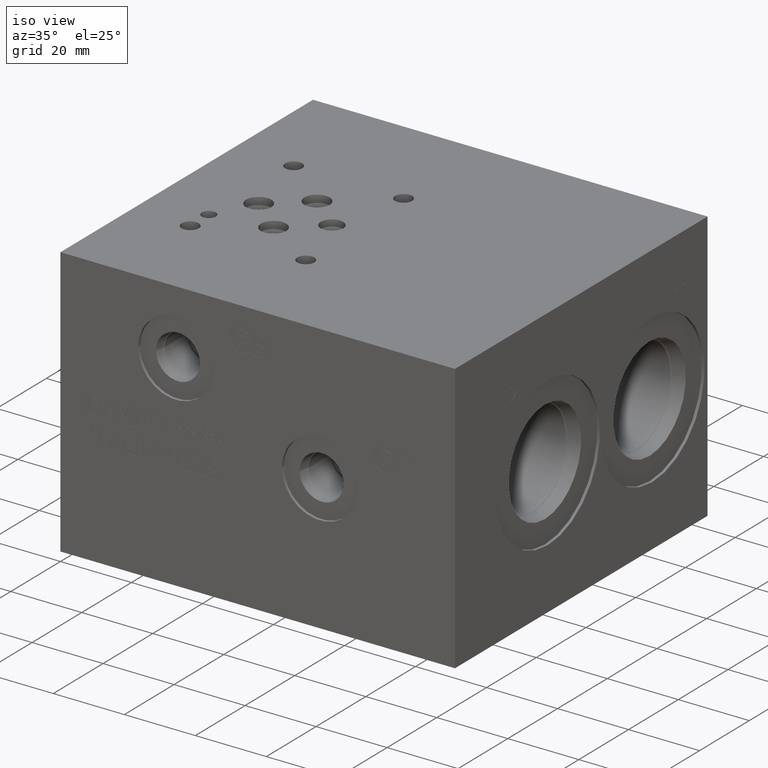
[diagram: clean part render]
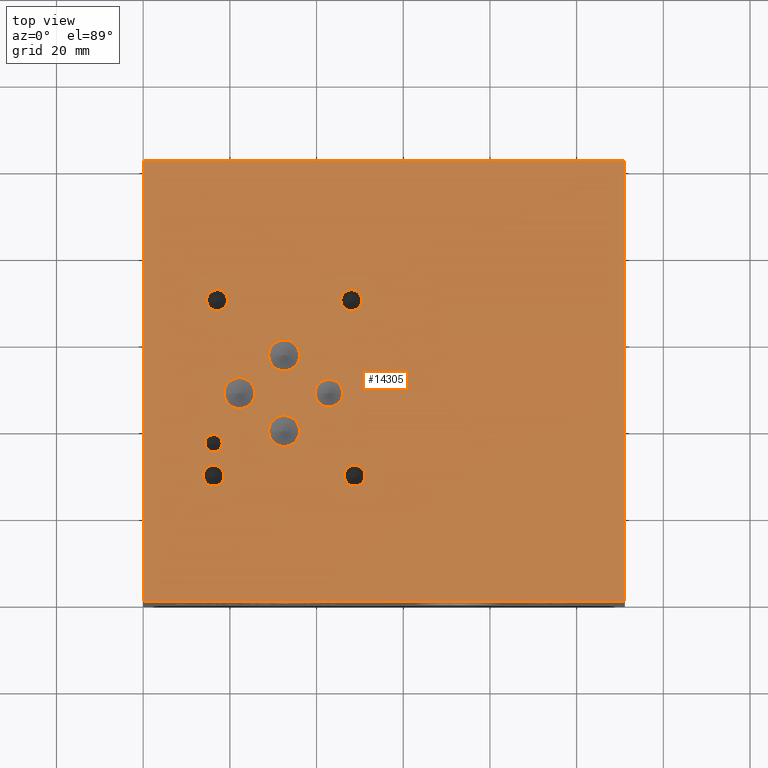
[diagram: tour spotlight — one face highlighted and labeled with its STEP entity id]
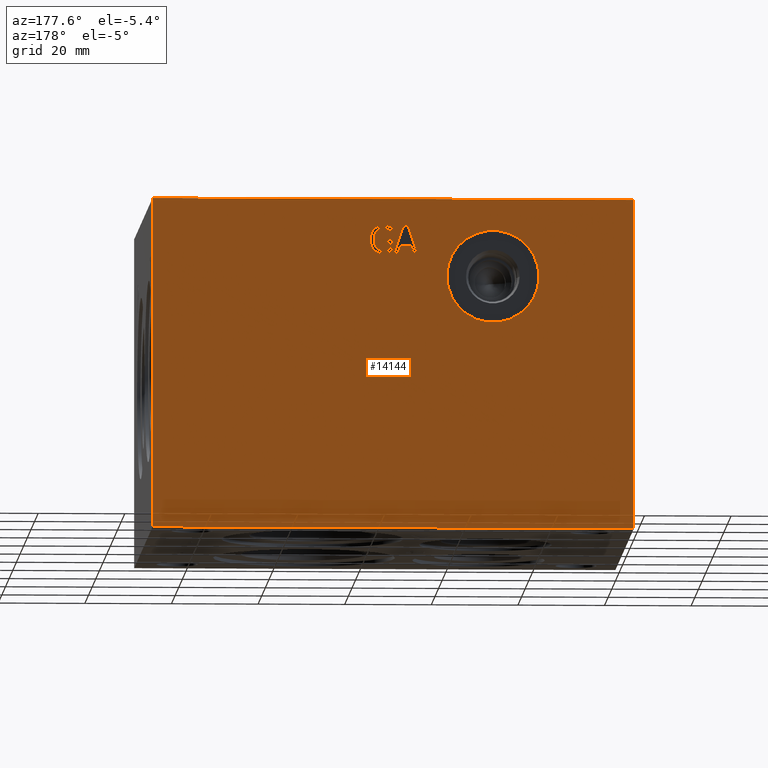
[diagram: tour spotlight — one face highlighted and labeled with its STEP entity id]
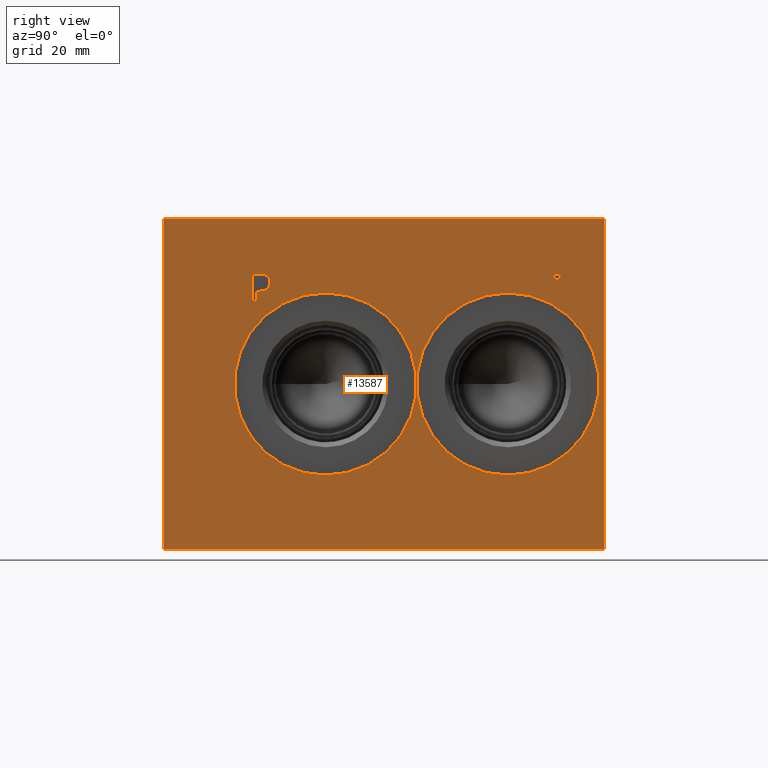
[diagram: tour spotlight — one face highlighted and labeled with its STEP entity id]
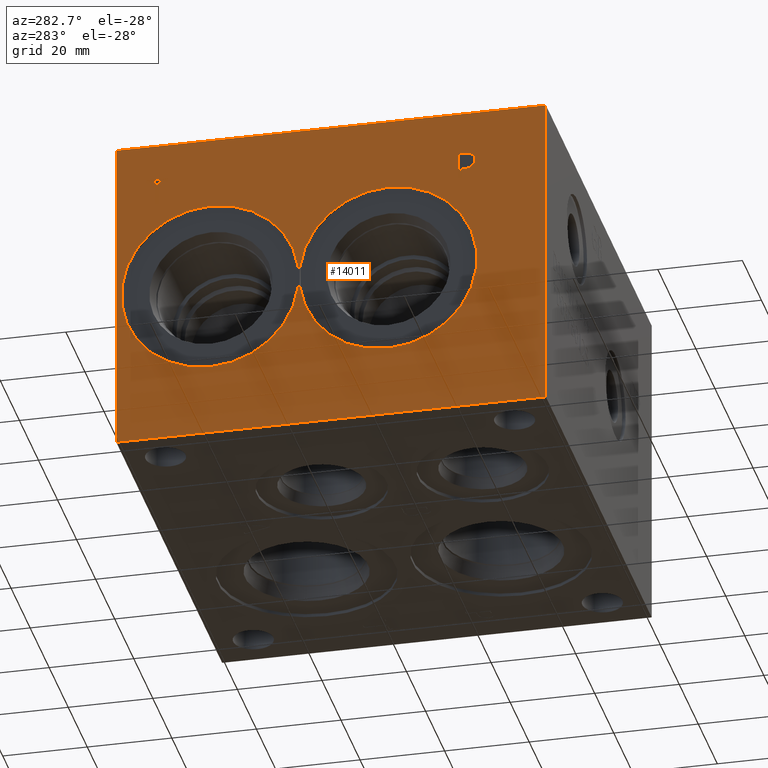
[diagram: tour spotlight — one face highlighted and labeled with its STEP entity id]
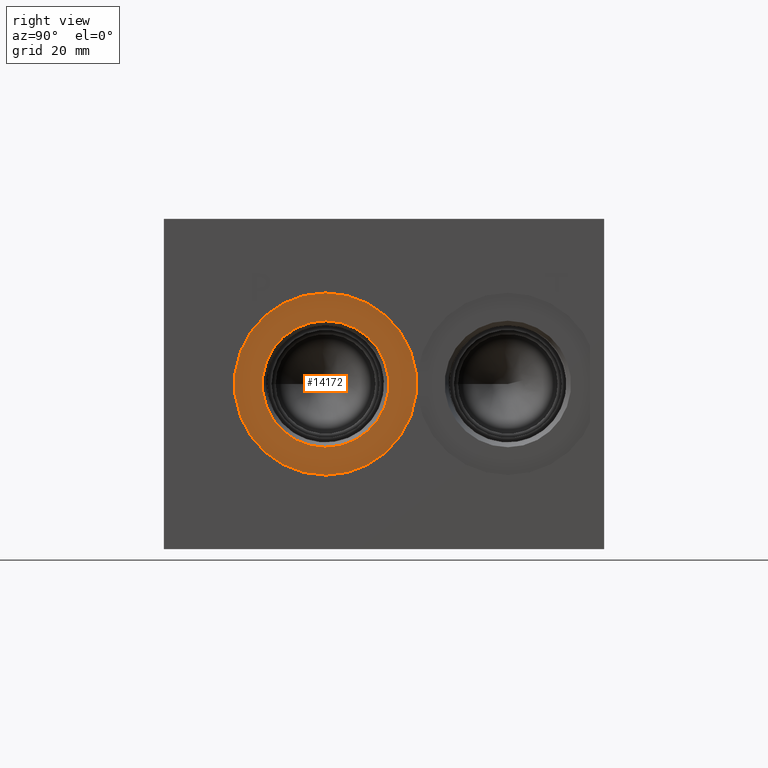
[diagram: tour spotlight — one face highlighted and labeled with its STEP entity id]
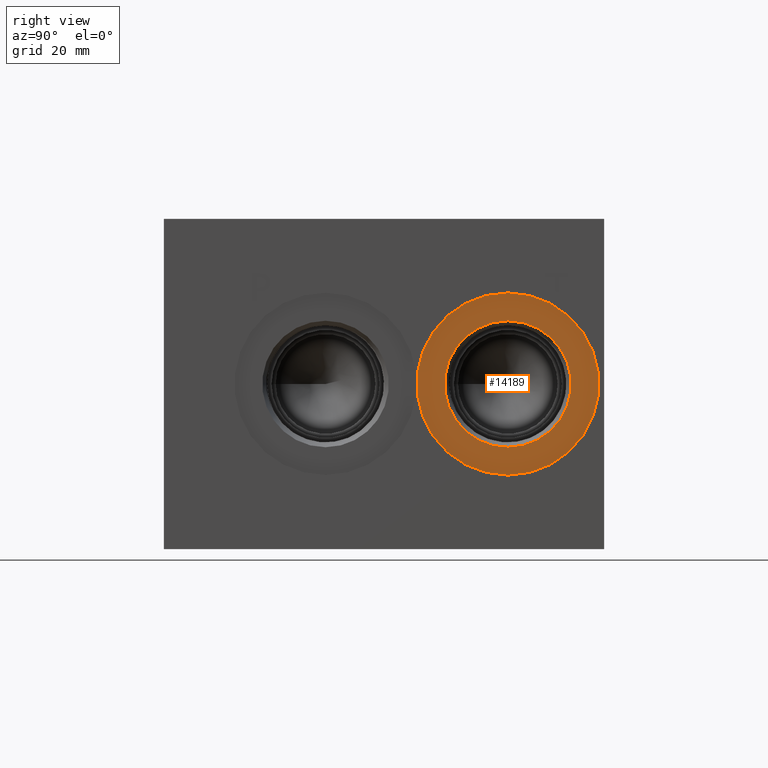
[diagram: tour spotlight — one face highlighted and labeled with its STEP entity id]
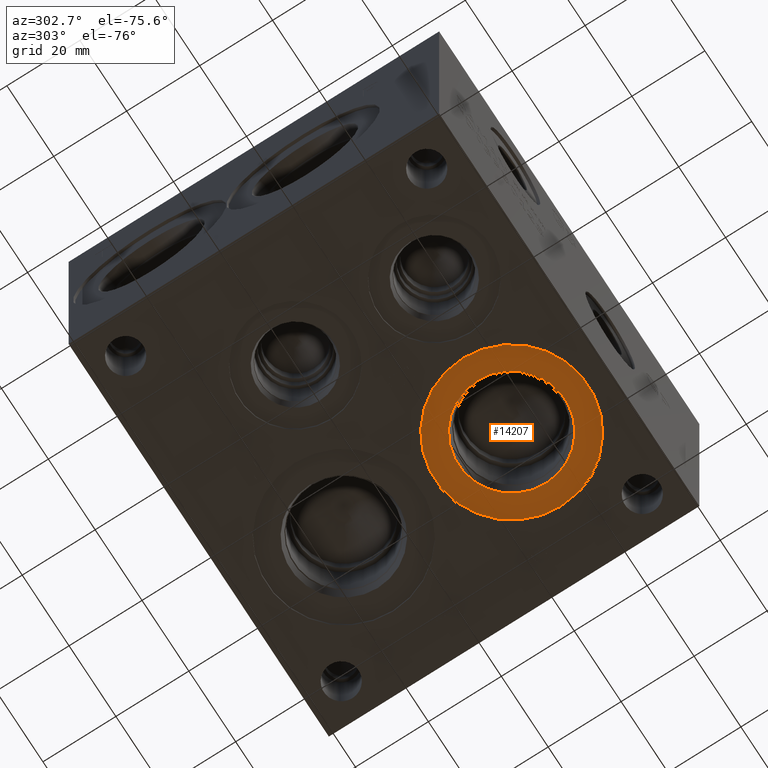
[diagram: tour spotlight — one face highlighted and labeled with its STEP entity id]
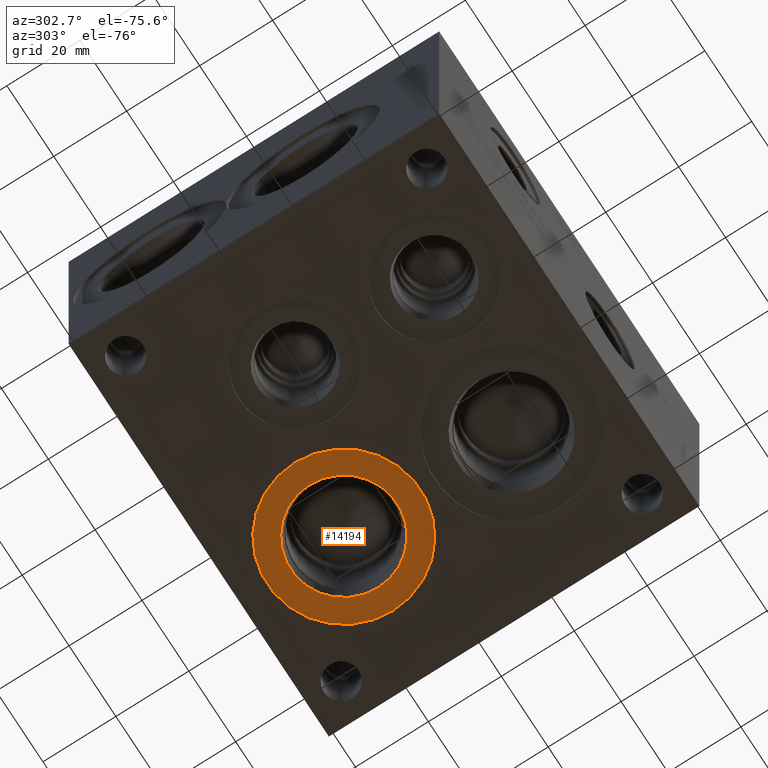
[diagram: tour spotlight — one face highlighted and labeled with its STEP entity id]
A machine part: a face-by-face anatomy tour. The part has 737 B-rep faces; the first image is the clean iso view, then the 8 largest visible faces are spotlighted one at a time (largest first), each with its STEP entity span.

Face 1 — top view, entity #14305. In plain terms, the highlighted planar face has unit normal (0, 0, 1).
Definition (entity closure, byte-faithful):
#172=CIRCLE('',#14719,3.175);
#173=CIRCLE('',#14720,3.175);
#176=CIRCLE('',#14725,3.5687);
#177=CIRCLE('',#14726,3.5687);
#180=CIRCLE('',#14731,3.5687);
#181=CIRCLE('',#14732,3.5687);
#184=CIRCLE('',#14737,3.5687);
#185=CIRCLE('',#14738,3.5687);
#188=CIRCLE('',#14743,1.9812);
#189=CIRCLE('',#14744,1.9812);
#195=CIRCLE('',#14753,2.413);
#196=CIRCLE('',#14754,2.413);
#202=CIRCLE('',#14764,2.413);
#203=CIRCLE('',#14765,2.413);
#209=CIRCLE('',#14775,2.413);
#210=CIRCLE('',#14776,2.413);
#216=CIRCLE('',#14786,2.413);
#217=CIRCLE('',#14787,2.413);
#514=FACE_BOUND('',#2493,.T.);
#515=FACE_BOUND('',#2494,.T.);
#516=FACE_BOUND('',#2495,.T.);
#517=FACE_BOUND('',#2496,.T.);
#518=FACE_BOUND('',#2497,.T.);
#519=FACE_BOUND('',#2498,.T.);
#520=FACE_BOUND('',#2499,.T.);
#521=FACE_BOUND('',#2500,.T.);
#522=FACE_BOUND('',#2501,.T.);
#921=PLANE('',#15122);
#1658=FACE_OUTER_BOUND('',#2492,.T.);
#2492=EDGE_LOOP('',(#12773,#12774,#12775,#12776));
#2493=EDGE_LOOP('',(#12777,#12778));
#2494=EDGE_LOOP('',(#12779,#12780));
#2495=EDGE_LOOP('',(#12781,#12782));
#2496=EDGE_LOOP('',(#12783,#12784));
#2497=EDGE_LOOP('',(#12785,#12786));
#2498=EDGE_LOOP('',(#12787,#12788));
#2499=EDGE_LOOP('',(#12789,#12790));
#2500=EDGE_LOOP('',(#12791,#12792));
#2501=EDGE_LOOP('',(#12793,#12794));
#2537=LINE('',#18226,#3822);
#2875=LINE('',#20638,#4160);
#3444=LINE('',#22677,#4729);
#3661=LINE('',#24026,#4946);
#3822=VECTOR('',#15180,10.);
#4160=VECTOR('',#15706,10.);
#4729=VECTOR('',#16705,10.);
#4946=VECTOR('',#17068,10.);
#5529=VERTEX_POINT('',#18223);
#5530=VERTEX_POINT('',#18225);
#5894=VERTEX_POINT('',#20637);
#6389=VERTEX_POINT('',#22676);
#6582=VERTEX_POINT('',#24039);
#6583=VERTEX_POINT('',#24040);
#6587=VERTEX_POINT('',#24052);
#6588=VERTEX_POINT('',#24053);
#6592=VERTEX_POINT('',#24065);
#6593=VERTEX_POINT('',#24066);
#6597=VERTEX_POINT('',#24078);
#6598=VERTEX_POINT('',#24079);
#6602=VERTEX_POINT('',#24091);
#6603=VERTEX_POINT('',#24092);
#6610=VERTEX_POINT('',#24111);
#6611=VERTEX_POINT('',#24112);
#6618=VERTEX_POINT('',#24133);
#6619=VERTEX_POINT('',#24134);
#6626=VERTEX_POINT('',#24155);
#6627=VERTEX_POINT('',#24156);
#6634=VERTEX_POINT('',#24177);
#6635=VERTEX_POINT('',#24178);
#6900=EDGE_CURVE('',#5530,#5529,#2537,.T.);
#7444=EDGE_CURVE('',#5894,#5530,#2875,.T.);
#8147=EDGE_CURVE('',#6389,#5894,#3444,.T.);
#8458=EDGE_CURVE('',#5529,#6389,#3661,.T.);
#8464=EDGE_CURVE('',#6582,#6583,#172,.T.);
#8465=EDGE_CURVE('',#6583,#6582,#173,.T.);
#8470=EDGE_CURVE('',#6587,#6588,#176,.T.);
#8471=EDGE_CURVE('',#6588,#6587,#177,.T.);
#8476=EDGE_CURVE('',#6592,#6593,#180,.T.);
#8477=EDGE_CURVE('',#6593,#6592,#181,.T.);
#8482=EDGE_CURVE('',#6597,#6598,#184,.T.);
#8483=EDGE_CURVE('',#6598,#6597,#185,.T.);
#8488=EDGE_CURVE('',#6602,#6603,#188,.T.);
#8489=EDGE_CURVE('',#6603,#6602,#189,.T.);
#8497=EDGE_CURVE('',#6610,#6611,#195,.T.);
#8498=EDGE_CURVE('',#6611,#6610,#196,.T.);
#8507=EDGE_CURVE('',#6618,#6619,#202,.T.);
#8508=EDGE_CURVE('',#6619,#6618,#203,.T.);
#8517=EDGE_CURVE('',#6626,#6627,#209,.T.);
#8518=EDGE_CURVE('',#6627,#6626,#210,.T.);
#8527=EDGE_CURVE('',#6634,#6635,#216,.T.);
#8528=EDGE_CURVE('',#6635,#6634,#217,.T.);
#12773=ORIENTED_EDGE('',*,*,#7444,.T.);
#12774=ORIENTED_EDGE('',*,*,#6900,.T.);
#12775=ORIENTED_EDGE('',*,*,#8458,.T.);
#12776=ORIENTED_EDGE('',*,*,#8147,.T.);
#12777=ORIENTED_EDGE('',*,*,#8464,.T.);
#12778=ORIENTED_EDGE('',*,*,#8465,.T.);
#12779=ORIENTED_EDGE('',*,*,#8470,.T.);
#12780=ORIENTED_EDGE('',*,*,#8471,.T.);
#12781=ORIENTED_EDGE('',*,*,#8476,.T.);
#12782=ORIENTED_EDGE('',*,*,#8477,.T.);
#12783=ORIENTED_EDGE('',*,*,#8482,.T.);
#12784=ORIENTED_EDGE('',*,*,#8483,.T.);
#12785=ORIENTED_EDGE('',*,*,#8488,.T.);
#12786=ORIENTED_EDGE('',*,*,#8489,.T.);
#12787=ORIENTED_EDGE('',*,*,#8497,.T.);
#12788=ORIENTED_EDGE('',*,*,#8498,.T.);
#12789=ORIENTED_EDGE('',*,*,#8507,.T.);
#12790=ORIENTED_EDGE('',*,*,#8508,.T.);
#12791=ORIENTED_EDGE('',*,*,#8517,.T.);
#12792=ORIENTED_EDGE('',*,*,#8518,.T.);
#12793=ORIENTED_EDGE('',*,*,#8527,.T.);
#12794=ORIENTED_EDGE('',*,*,#8528,.T.);
#14305=ADVANCED_FACE('',(#1658,#514,#515,#516,#517,#518,#519,#520,#521,
#522),#921,.T.);
#14719=AXIS2_PLACEMENT_3D('',#24041,#17082,#17083);
#14720=AXIS2_PLACEMENT_3D('',#24042,#17084,#17085);
#14725=AXIS2_PLACEMENT_3D('',#24054,#17096,#17097);
#14726=AXIS2_PLACEMENT_3D('',#24055,#17098,#17099);
#14731=AXIS2_PLACEMENT_3D('',#24067,#17110,#17111);
#14732=AXIS2_PLACEMENT_3D('',#24068,#17112,#17113);
#14737=AXIS2_PLACEMENT_3D('',#24080,#17124,#17125);
#14738=AXIS2_PLACEMENT_3D('',#24081,#17126,#17127);
#14743=AXIS2_PLACEMENT_3D('',#24093,#17138,#17139);
#14744=AXIS2_PLACEMENT_3D('',#24094,#17140,#17141);
#14753=AXIS2_PLACEMENT_3D('',#24113,#17160,#17161);
#14754=AXIS2_PLACEMENT_3D('',#24114,#17162,#17163);
#14764=AXIS2_PLACEMENT_3D('',#24135,#17185,#17186);
#14765=AXIS2_PLACEMENT_3D('',#24136,#17187,#17188);
#14775=AXIS2_PLACEMENT_3D('',#24157,#17210,#17211);
#14776=AXIS2_PLACEMENT_3D('',#24158,#17212,#17213);
#14786=AXIS2_PLACEMENT_3D('',#24179,#17235,#17236);
#14787=AXIS2_PLACEMENT_3D('',#24180,#17237,#17238);
#15122=AXIS2_PLACEMENT_3D('',#24835,#18013,#18014);
#15180=DIRECTION('',(0.,1.,0.));
#15706=DIRECTION('',(1.,0.,0.));
#16705=DIRECTION('',(0.,-1.,0.));
#17068=DIRECTION('',(-1.,0.,0.));
#17082=DIRECTION('center_axis',(0.,0.,-1.));
#17083=DIRECTION('ref_axis',(1.,0.,0.));
#17084=DIRECTION('center_axis',(0.,0.,-1.));
#17085=DIRECTION('ref_axis',(1.,0.,0.));
#17096=DIRECTION('center_axis',(0.,0.,-1.));
#17097=DIRECTION('ref_axis',(1.,0.,0.));
#17098=DIRECTION('center_axis',(0.,0.,-1.));
#17099=DIRECTION('ref_axis',(1.,0.,0.));
#17110=DIRECTION('center_axis',(0.,0.,-1.));
#17111=DIRECTION('ref_axis',(1.,0.,0.));
#17112=DIRECTION('center_axis',(0.,0.,-1.));
#17113=DIRECTION('ref_axis',(1.,0.,0.));
#17124=DIRECTION('center_axis',(0.,0.,-1.));
#17125=DIRECTION('ref_axis',(1.,0.,0.));
#17126=DIRECTION('center_axis',(0.,0.,-1.));
#17127=DIRECTION('ref_axis',(1.,0.,0.));
#17138=DIRECTION('center_axis',(0.,0.,-1.));
#17139=DIRECTION('ref_axis',(1.,0.,0.));
#17140=DIRECTION('center_axis',(0.,0.,-1.));
#17141=DIRECTION('ref_axis',(1.,0.,0.));
#17160=DIRECTION('center_axis',(0.,0.,-1.));
#17161=DIRECTION('ref_axis',(1.,0.,0.));
#17162=DIRECTION('center_axis',(0.,0.,-1.));
#17163=DIRECTION('ref_axis',(1.,0.,0.));
#17185=DIRECTION('center_axis',(0.,0.,-1.));
#17186=DIRECTION('ref_axis',(1.,0.,0.));
#17187=DIRECTION('center_axis',(0.,0.,-1.));
#17188=DIRECTION('ref_axis',(1.,0.,0.));
#17210=DIRECTION('center_axis',(0.,0.,-1.));
#17211=DIRECTION('ref_axis',(1.,0.,0.));
#17212=DIRECTION('center_axis',(0.,0.,-1.));
#17213=DIRECTION('ref_axis',(1.,0.,0.));
#17235=DIRECTION('center_axis',(0.,0.,-1.));
#17236=DIRECTION('ref_axis',(1.,0.,0.));
#17237=DIRECTION('center_axis',(0.,0.,-1.));
#17238=DIRECTION('ref_axis',(1.,0.,0.));
#18013=DIRECTION('center_axis',(0.,0.,1.));
#18014=DIRECTION('ref_axis',(1.,0.,0.));
#18223=CARTESIAN_POINT('',(111.125,101.6,76.2));
#18225=CARTESIAN_POINT('',(111.125,0.,76.2));
#18226=CARTESIAN_POINT('',(111.125,0.,76.2));
#20637=CARTESIAN_POINT('',(0.,0.,76.2));
#20638=CARTESIAN_POINT('',(0.,0.,76.2));
#22676=CARTESIAN_POINT('',(0.,101.6,76.2));
#22677=CARTESIAN_POINT('',(0.,101.6,76.2));
#24026=CARTESIAN_POINT('',(111.125,101.6,76.2));
#24039=CARTESIAN_POINT('',(46.0248,48.0314,76.2));
#24040=CARTESIAN_POINT('',(39.6748,48.0314,76.2));
#24041=CARTESIAN_POINT('Origin',(42.8498,48.0314,76.2));
#24042=CARTESIAN_POINT('Origin',(42.8498,48.0314,76.2));
#24052=CARTESIAN_POINT('',(36.0807,56.769,76.2));
#24053=CARTESIAN_POINT('',(28.9433,56.769,76.2));
#24054=CARTESIAN_POINT('Origin',(32.512,56.769,76.2));
#24055=CARTESIAN_POINT('Origin',(32.512,56.769,76.2));
#24065=CARTESIAN_POINT('',(25.7683,48.0314,76.2));
#24066=CARTESIAN_POINT('',(18.6309,48.0314,76.2));
#24067=CARTESIAN_POINT('Origin',(22.1996,48.0314,76.2));
#24068=CARTESIAN_POINT('Origin',(22.1996,48.0314,76.2));
#24078=CARTESIAN_POINT('',(36.0807,39.2938,76.2));
#24079=CARTESIAN_POINT('',(28.9433,39.2938,76.2));
#24080=CARTESIAN_POINT('Origin',(32.512,39.2938,76.2));
#24081=CARTESIAN_POINT('Origin',(32.512,39.2938,76.2));
#24091=CARTESIAN_POINT('',(18.2372,36.4744,76.2));
#24092=CARTESIAN_POINT('',(14.2748,36.4744,76.2));
#24093=CARTESIAN_POINT('Origin',(16.256,36.4744,76.2));
#24094=CARTESIAN_POINT('Origin',(16.256,36.4744,76.2));
#24111=CARTESIAN_POINT('',(51.2064,28.9814,76.2));
#24112=CARTESIAN_POINT('',(46.3804,28.9814,76.2));
#24113=CARTESIAN_POINT('Origin',(48.7934,28.9814,76.2));
#24114=CARTESIAN_POINT('Origin',(48.7934,28.9814,76.2));
#24133=CARTESIAN_POINT('',(19.4564,69.469,76.2));
#24134=CARTESIAN_POINT('',(14.6304,69.469,76.2));
#24135=CARTESIAN_POINT('Origin',(17.0434,69.469,76.2));
#24136=CARTESIAN_POINT('Origin',(17.0434,69.469,76.2));
#24155=CARTESIAN_POINT('',(50.419,69.469,76.2));
#24156=CARTESIAN_POINT('',(45.593,69.469,76.2));
#24157=CARTESIAN_POINT('Origin',(48.006,69.469,76.2));
#24158=CARTESIAN_POINT('Origin',(48.006,69.469,76.2));
#24177=CARTESIAN_POINT('',(18.669,28.9814,76.2));
#24178=CARTESIAN_POINT('',(13.843,28.9814,76.2));
#24179=CARTESIAN_POINT('Origin',(16.256,28.9814,76.2));
#24180=CARTESIAN_POINT('Origin',(16.256,28.9814,76.2));
#24835=CARTESIAN_POINT('Origin',(55.5625,50.8,76.2));

Face 2 — auxiliary view, entity #14144. In plain terms, the highlighted planar face has unit normal (0, 1, 0).
Definition (entity closure, byte-faithful):
#168=CIRCLE('',#14713,10.6426);
#169=CIRCLE('',#14714,10.6426);
#481=FACE_BOUND('',#2299,.T.);
#482=FACE_BOUND('',#2300,.T.);
#483=FACE_BOUND('',#2301,.T.);
#886=PLANE('',#14712);
#1497=FACE_OUTER_BOUND('',#2298,.T.);
#2298=EDGE_LOOP('',(#11956,#11957,#11958,#11959));
#2299=EDGE_LOOP('',(#11960,#11961));
#2300=EDGE_LOOP('',(#11962,#11963,#11964,#11965,#11966,#11967,#11968,#11969,
#11970,#11971,#11972,#11973,#11974,#11975,#11976,#11977,#11978,#11979,#11980,
#11981,#11982));
#2301=EDGE_LOOP('',(#11983,#11984,#11985,#11986,#11987,#11988,#11989,#11990));
#2536=LINE('',#18224,#3821);
#3334=LINE('',#22044,#4619);
#3445=LINE('',#22678,#4730);
#3602=LINE('',#23670,#4887);
#3606=LINE('',#23678,#4891);
#3609=LINE('',#23684,#4894);
#3612=LINE('',#23690,#4897);
#3615=LINE('',#23696,#4900);
#3618=LINE('',#23702,#4903);
#3621=LINE('',#23708,#4906);
#3624=LINE('',#23713,#4909);
#3629=LINE('',#23759,#4914);
#3632=LINE('',#23765,#4917);
#3635=LINE('',#23771,#4920);
#3638=LINE('',#23777,#4923);
#3641=LINE('',#23783,#4926);
#3650=LINE('',#23903,#4935);
#3653=LINE('',#23909,#4938);
#3661=LINE('',#24026,#4946);
#3821=VECTOR('',#15179,10.);
#4619=VECTOR('',#16491,10.);
#4730=VECTOR('',#16706,10.);
#4887=VECTOR('',#16975,10.);
#4891=VECTOR('',#16981,10.);
#4894=VECTOR('',#16986,10.);
#4897=VECTOR('',#16991,10.);
#4900=VECTOR('',#16996,10.);
#4903=VECTOR('',#17001,10.);
#4906=VECTOR('',#17006,10.);
#4909=VECTOR('',#17011,10.);
#4914=VECTOR('',#17020,10.);
#4917=VECTOR('',#17025,10.);
#4920=VECTOR('',#17030,10.);
#4923=VECTOR('',#17035,10.);
#4926=VECTOR('',#17040,10.);
#4935=VECTOR('',#17051,10.);
#4938=VECTOR('',#17056,10.);
#4946=VECTOR('',#17068,10.);
#5467=B_SPLINE_CURVE_WITH_KNOTS('',2,(#23726,#23727,#23728,#23729),
 .UNSPECIFIED.,.F.,.F.,(3,1,3),(0.,1.,2.),.UNSPECIFIED.);
#5469=B_SPLINE_CURVE_WITH_KNOTS('',2,(#23747,#23748,#23749,#23750),
 .UNSPECIFIED.,.F.,.F.,(3,1,3),(0.,1.,2.),.UNSPECIFIED.);
#5471=B_SPLINE_CURVE_WITH_KNOTS('',2,(#23796,#23797,#23798,#23799),
 .UNSPECIFIED.,.F.,.F.,(3,1,3),(0.,1.,2.),.UNSPECIFIED.);
#5473=B_SPLINE_CURVE_WITH_KNOTS('',2,(#23815,#23816,#23817,#23818),
 .UNSPECIFIED.,.F.,.F.,(3,1,3),(0.,1.,2.),.UNSPECIFIED.);
#5475=B_SPLINE_CURVE_WITH_KNOTS('',2,(#23834,#23835,#23836,#23837),
 .UNSPECIFIED.,.F.,.F.,(3,1,3),(0.,1.,2.),.UNSPECIFIED.);
#5477=B_SPLINE_CURVE_WITH_KNOTS('',2,(#23853,#23854,#23855,#23856),
 .UNSPECIFIED.,.F.,.F.,(3,1,3),(0.,1.,2.),.UNSPECIFIED.);
#5479=B_SPLINE_CURVE_WITH_KNOTS('',2,(#23872,#23873,#23874,#23875),
 .UNSPECIFIED.,.F.,.F.,(3,1,3),(0.,1.,2.),.UNSPECIFIED.);
#5481=B_SPLINE_CURVE_WITH_KNOTS('',2,(#23891,#23892,#23893,#23894),
 .UNSPECIFIED.,.F.,.F.,(3,1,3),(0.,1.,2.),.UNSPECIFIED.);
#5483=B_SPLINE_CURVE_WITH_KNOTS('',2,(#23922,#23923,#23924,#23925),
 .UNSPECIFIED.,.F.,.F.,(3,1,3),(0.,1.,2.),.UNSPECIFIED.);
#5485=B_SPLINE_CURVE_WITH_KNOTS('',2,(#23941,#23942,#23943,#23944),
 .UNSPECIFIED.,.F.,.F.,(3,1,3),(0.,1.,2.),.UNSPECIFIED.);
#5487=B_SPLINE_CURVE_WITH_KNOTS('',2,(#23960,#23961,#23962,#23963),
 .UNSPECIFIED.,.F.,.F.,(3,1,3),(0.,1.,2.),.UNSPECIFIED.);
#5489=B_SPLINE_CURVE_WITH_KNOTS('',2,(#23979,#23980,#23981,#23982),
 .UNSPECIFIED.,.F.,.F.,(3,1,3),(0.,1.,2.),.UNSPECIFIED.);
#5491=B_SPLINE_CURVE_WITH_KNOTS('',2,(#23998,#23999,#24000,#24001),
 .UNSPECIFIED.,.F.,.F.,(3,1,3),(0.,1.,2.),.UNSPECIFIED.);
#5493=B_SPLINE_CURVE_WITH_KNOTS('',2,(#24016,#24017,#24018,#24019),
 .UNSPECIFIED.,.F.,.F.,(3,1,3),(0.,1.,2.),.UNSPECIFIED.);
#5528=VERTEX_POINT('',#18221);
#5529=VERTEX_POINT('',#18223);
#6270=VERTEX_POINT('',#22042);
#6389=VERTEX_POINT('',#22676);
#6519=VERTEX_POINT('',#23668);
#6520=VERTEX_POINT('',#23669);
#6523=VERTEX_POINT('',#23677);
#6525=VERTEX_POINT('',#23683);
#6527=VERTEX_POINT('',#23689);
#6529=VERTEX_POINT('',#23695);
#6531=VERTEX_POINT('',#23701);
#6533=VERTEX_POINT('',#23707);
#6535=VERTEX_POINT('',#23724);
#6536=VERTEX_POINT('',#23725);
#6539=VERTEX_POINT('',#23746);
#6541=VERTEX_POINT('',#23758);
#6543=VERTEX_POINT('',#23764);
#6545=VERTEX_POINT('',#23770);
#6547=VERTEX_POINT('',#23776);
#6549=VERTEX_POINT('',#23782);
#6551=VERTEX_POINT('',#23795);
#6553=VERTEX_POINT('',#23814);
#6555=VERTEX_POINT('',#23833);
#6557=VERTEX_POINT('',#23852);
#6559=VERTEX_POINT('',#23871);
#6561=VERTEX_POINT('',#23890);
#6563=VERTEX_POINT('',#23902);
#6565=VERTEX_POINT('',#23908);
#6567=VERTEX_POINT('',#23921);
#6569=VERTEX_POINT('',#23940);
#6571=VERTEX_POINT('',#23959);
#6573=VERTEX_POINT('',#23978);
#6575=VERTEX_POINT('',#23997);
#6577=VERTEX_POINT('',#24027);
#6578=VERTEX_POINT('',#24028);
#6899=EDGE_CURVE('',#5528,#5529,#2536,.T.);
#7977=EDGE_CURVE('',#5528,#6270,#3334,.T.);
#8148=EDGE_CURVE('',#6270,#6389,#3445,.T.);
#8371=EDGE_CURVE('',#6519,#6520,#3602,.T.);
#8375=EDGE_CURVE('',#6523,#6519,#3606,.T.);
#8378=EDGE_CURVE('',#6525,#6523,#3609,.T.);
#8381=EDGE_CURVE('',#6527,#6525,#3612,.T.);
#8384=EDGE_CURVE('',#6529,#6527,#3615,.T.);
#8387=EDGE_CURVE('',#6531,#6529,#3618,.T.);
#8390=EDGE_CURVE('',#6533,#6531,#3621,.T.);
#8393=EDGE_CURVE('',#6520,#6533,#3624,.T.);
#8395=EDGE_CURVE('',#6535,#6536,#5467,.T.);
#8399=EDGE_CURVE('',#6539,#6535,#5469,.T.);
#8402=EDGE_CURVE('',#6541,#6539,#3629,.T.);
#8405=EDGE_CURVE('',#6543,#6541,#3632,.T.);
#8408=EDGE_CURVE('',#6545,#6543,#3635,.T.);
#8411=EDGE_CURVE('',#6547,#6545,#3638,.T.);
#8414=EDGE_CURVE('',#6549,#6547,#3641,.T.);
#8417=EDGE_CURVE('',#6551,#6549,#5471,.T.);
#8420=EDGE_CURVE('',#6553,#6551,#5473,.T.);
#8423=EDGE_CURVE('',#6555,#6553,#5475,.T.);
#8426=EDGE_CURVE('',#6557,#6555,#5477,.T.);
#8429=EDGE_CURVE('',#6559,#6557,#5479,.T.);
#8432=EDGE_CURVE('',#6561,#6559,#5481,.T.);
#8435=EDGE_CURVE('',#6563,#6561,#3650,.T.);
#8438=EDGE_CURVE('',#6565,#6563,#3653,.T.);
#8441=EDGE_CURVE('',#6567,#6565,#5483,.T.);
#8444=EDGE_CURVE('',#6569,#6567,#5485,.T.);
#8447=EDGE_CURVE('',#6571,#6569,#5487,.T.);
#8450=EDGE_CURVE('',#6573,#6571,#5489,.T.);
#8453=EDGE_CURVE('',#6575,#6573,#5491,.T.);
#8456=EDGE_CURVE('',#6536,#6575,#5493,.T.);
#8458=EDGE_CURVE('',#5529,#6389,#3661,.T.);
#8459=EDGE_CURVE('',#6577,#6578,#168,.T.);
#8460=EDGE_CURVE('',#6578,#6577,#169,.T.);
#11956=ORIENTED_EDGE('',*,*,#7977,.T.);
#11957=ORIENTED_EDGE('',*,*,#8148,.T.);
#11958=ORIENTED_EDGE('',*,*,#8458,.F.);
#11959=ORIENTED_EDGE('',*,*,#6899,.F.);
#11960=ORIENTED_EDGE('',*,*,#8459,.T.);
#11961=ORIENTED_EDGE('',*,*,#8460,.T.);
#11962=ORIENTED_EDGE('',*,*,#8395,.T.);
#11963=ORIENTED_EDGE('',*,*,#8456,.T.);
#11964=ORIENTED_EDGE('',*,*,#8453,.T.);
#11965=ORIENTED_EDGE('',*,*,#8450,.T.);
#11966=ORIENTED_EDGE('',*,*,#8447,.T.);
#11967=ORIENTED_EDGE('',*,*,#8444,.T.);
#11968=ORIENTED_EDGE('',*,*,#8441,.T.);
#11969=ORIENTED_EDGE('',*,*,#8438,.T.);
#11970=ORIENTED_EDGE('',*,*,#8435,.T.);
#11971=ORIENTED_EDGE('',*,*,#8432,.T.);
#11972=ORIENTED_EDGE('',*,*,#8429,.T.);
#11973=ORIENTED_EDGE('',*,*,#8426,.T.);
#11974=ORIENTED_EDGE('',*,*,#8423,.T.);
#11975=ORIENTED_EDGE('',*,*,#8420,.T.);
#11976=ORIENTED_EDGE('',*,*,#8417,.T.);
#11977=ORIENTED_EDGE('',*,*,#8414,.T.);
#11978=ORIENTED_EDGE('',*,*,#8411,.T.);
#11979=ORIENTED_EDGE('',*,*,#8408,.T.);
#11980=ORIENTED_EDGE('',*,*,#8405,.T.);
#11981=ORIENTED_EDGE('',*,*,#8402,.T.);
#11982=ORIENTED_EDGE('',*,*,#8399,.T.);
#11983=ORIENTED_EDGE('',*,*,#8371,.T.);
#11984=ORIENTED_EDGE('',*,*,#8393,.T.);
#11985=ORIENTED_EDGE('',*,*,#8390,.T.);
#11986=ORIENTED_EDGE('',*,*,#8387,.T.);
#11987=ORIENTED_EDGE('',*,*,#8384,.T.);
#11988=ORIENTED_EDGE('',*,*,#8381,.T.);
#11989=ORIENTED_EDGE('',*,*,#8378,.T.);
#11990=ORIENTED_EDGE('',*,*,#8375,.T.);
#14144=ADVANCED_FACE('',(#1497,#481,#482,#483),#886,.T.);
#14712=AXIS2_PLACEMENT_3D('',#24025,#17066,#17067);
#14713=AXIS2_PLACEMENT_3D('',#24029,#17069,#17070);
#14714=AXIS2_PLACEMENT_3D('',#24030,#17071,#17072);
#15179=DIRECTION('',(0.,0.,1.));
#16491=DIRECTION('',(-1.,0.,0.));
#16706=DIRECTION('',(0.,0.,1.));
#16975=DIRECTION('',(1.,0.,1.03976111030302E-14));
#16981=DIRECTION('',(0.308774363938379,0.,-0.951135317488763));
#16986=DIRECTION('',(1.,0.,3.66455083461359E-15));
#16991=DIRECTION('',(0.308774363938383,0.,0.951135317488761));
#16996=DIRECTION('',(1.,0.,0.));
#17001=DIRECTION('',(-0.319451166674566,0.,-0.947602739606772));
#17006=DIRECTION('',(-1.,0.,0.));
#17011=DIRECTION('',(-0.31945116667457,0.,0.94760273960677));
#17020=DIRECTION('',(3.20223273302969E-15,0.,-1.));
#17025=DIRECTION('',(-1.,0.,-3.85268625692635E-15));
#17030=DIRECTION('',(-1.19861350215487E-14,0.,1.));
#17035=DIRECTION('',(1.,0.,6.03497707378672E-15));
#17040=DIRECTION('',(0.,0.,1.));
#17051=DIRECTION('',(1.,0.,0.));
#17056=DIRECTION('',(8.71718910658076E-15,0.,-1.));
#17066=DIRECTION('center_axis',(0.,1.,0.));
#17067=DIRECTION('ref_axis',(-1.,0.,0.));
#17068=DIRECTION('',(-1.,0.,0.));
#17069=DIRECTION('center_axis',(0.,-1.,0.));
#17070=DIRECTION('ref_axis',(1.,0.,0.));
#17071=DIRECTION('center_axis',(0.,-1.,0.));
#17072=DIRECTION('ref_axis',(1.,0.,0.));
#18221=CARTESIAN_POINT('',(111.125,101.6,0.));
#18223=CARTESIAN_POINT('',(111.125,101.6,76.2));
#18224=CARTESIAN_POINT('',(111.125,101.6,0.));
#22042=CARTESIAN_POINT('',(0.,101.6,0.));
#22044=CARTESIAN_POINT('',(111.125,101.6,0.));
#22676=CARTESIAN_POINT('',(0.,101.6,76.2));
#22678=CARTESIAN_POINT('',(0.,101.6,0.));
#23668=CARTESIAN_POINT('',(54.4754356751373,101.6,63.6235008053481));
#23669=CARTESIAN_POINT('',(55.3296496007199,101.6,63.6235008053481));
#23670=CARTESIAN_POINT('',(82.8002178375683,101.6,63.6235008053484));
#23677=CARTESIAN_POINT('',(53.89909856872,101.6,65.398824927794));
#23678=CARTESIAN_POINT('',(66.2304695708707,101.6,27.4137981800976));
#23683=CARTESIAN_POINT('',(51.4753952015548,101.6,65.398824927794));
#23684=CARTESIAN_POINT('',(81.3001976007773,101.6,65.3988249277941));
#23689=CARTESIAN_POINT('',(50.8990580951375,101.6,63.6235008053481));
#23690=CARTESIAN_POINT('',(44.4274049858791,101.6,43.6884979241503));
#23695=CARTESIAN_POINT('',(50.0088231004038,101.6,63.6235008053481));
#23696=CARTESIAN_POINT('',(80.5669115502019,101.6,63.6235008053481));
#23701=CARTESIAN_POINT('',(52.149503781382,101.6,69.9735007099807));
#23702=CARTESIAN_POINT('',(44.5677632125999,101.6,47.4834337343143));
#23707=CARTESIAN_POINT('',(53.1889689197417,101.6,69.9735007099807));
#23708=CARTESIAN_POINT('',(82.1569844598708,101.6,69.9735007099807));
#23713=CARTESIAN_POINT('',(67.806404853106,101.6,26.6131258499531));
#23724=CARTESIAN_POINT('',(56.6418456912234,101.6,63.6852512096071));
#23725=CARTESIAN_POINT('',(57.8151033721442,101.6,63.4999999968302));
#23726=CARTESIAN_POINT('Ctrl Pts',(56.6418456912234,101.6,63.6852512096071));
#23727=CARTESIAN_POINT('Ctrl Pts',(56.9557435795399,101.6,63.5926256032187));
#23728=CARTESIAN_POINT('Ctrl Pts',(57.460038547655,101.6,63.4999999968302));
#23729=CARTESIAN_POINT('Ctrl Pts',(57.8151033721442,101.6,63.4999999968302));
#23746=CARTESIAN_POINT('',(55.7052978932954,101.6,64.0454619011179));
#23747=CARTESIAN_POINT('Ctrl Pts',(55.7052978932954,101.6,64.0454619011179));
#23748=CARTESIAN_POINT('Ctrl Pts',(55.8648197709645,101.6,63.9734197628157));
#23749=CARTESIAN_POINT('Ctrl Pts',(56.4102816752522,101.6,63.7521474808877));
#23750=CARTESIAN_POINT('Ctrl Pts',(56.6418456912234,101.6,63.6852512096071));
#23758=CARTESIAN_POINT('',(55.7052978932954,101.6,66.8190842257508));
#23759=CARTESIAN_POINT('',(55.7052978932955,101.6,33.4095421128753));
#23764=CARTESIAN_POINT('',(58.0106463189643,101.6,66.8190842257508));
#23765=CARTESIAN_POINT('',(84.567823159482,101.6,66.8190842257509));
#23770=CARTESIAN_POINT('',(58.0106463189643,101.6,66.0780793746429));
#23771=CARTESIAN_POINT('',(58.0106463189647,101.6,33.0390396873211));
#23776=CARTESIAN_POINT('',(56.5389283507918,101.6,66.0780793746429));
#23777=CARTESIAN_POINT('',(83.8319641753957,101.6,66.0780793746431));
#23782=CARTESIAN_POINT('',(56.5389283507917,101.6,64.4365477947582));
#23783=CARTESIAN_POINT('',(56.5389283507918,101.6,32.2182738973791));
#23795=CARTESIAN_POINT('',(57.8459785742737,101.6,64.2307131138949));
#23796=CARTESIAN_POINT('Ctrl Pts',(57.8459785742737,101.6,64.2307131138949));
#23797=CARTESIAN_POINT('Ctrl Pts',(57.4909137497845,101.6,64.2307131138949));
#23798=CARTESIAN_POINT('Ctrl Pts',(56.7807841008061,101.6,64.3336304543265));
#23799=CARTESIAN_POINT('Ctrl Pts',(56.5389283507918,101.6,64.4365477947582));
#23814=CARTESIAN_POINT('',(59.3743010796836,101.6,64.9048216937222));
#23815=CARTESIAN_POINT('Ctrl Pts',(59.3743010796836,101.6,64.9048216937222));
#23816=CARTESIAN_POINT('Ctrl Pts',(59.1015701275397,101.6,64.5754862043409));
#23817=CARTESIAN_POINT('Ctrl Pts',(58.3296900743024,101.6,64.2307131138949));
#23818=CARTESIAN_POINT('Ctrl Pts',(57.8459785742737,101.6,64.2307131138949));
#23833=CARTESIAN_POINT('',(59.9557840531224,101.6,66.8293759597939));
#23834=CARTESIAN_POINT('Ctrl Pts',(59.9557840531224,101.6,66.8293759597939));
#23835=CARTESIAN_POINT('Ctrl Pts',(59.9557840531224,101.6,66.1912884491177));
#23836=CARTESIAN_POINT('Ctrl Pts',(59.6573237658706,101.6,65.2341571831034));
#23837=CARTESIAN_POINT('Ctrl Pts',(59.3743010796836,101.6,64.9048216937222));
#23852=CARTESIAN_POINT('',(57.9077289785326,101.6,69.3559966673908));
#23853=CARTESIAN_POINT('Ctrl Pts',(57.9077289785326,101.6,69.3559966673908));
#23854=CARTESIAN_POINT('Ctrl Pts',(58.8236933083743,101.6,69.3559966673909));
#23855=CARTESIAN_POINT('Ctrl Pts',(59.9557840531224,101.6,67.9769043056068));
#23856=CARTESIAN_POINT('Ctrl Pts',(59.9557840531224,101.6,66.8293759597939));
#23871=CARTESIAN_POINT('',(56.6058246220723,101.6,69.0575363801391));
#23872=CARTESIAN_POINT('Ctrl Pts',(56.6058246220723,101.6,69.0575363801391));
#23873=CARTESIAN_POINT('Ctrl Pts',(56.8631179731514,101.6,69.1861830556786));
#23874=CARTESIAN_POINT('Ctrl Pts',(57.5269348189355,101.6,69.3559966673908));
#23875=CARTESIAN_POINT('Ctrl Pts',(57.9077289785326,101.6,69.3559966673908));
#23890=CARTESIAN_POINT('',(55.8030693667055,101.6,68.5223662098945));
#23891=CARTESIAN_POINT('Ctrl Pts',(55.8030693667055,101.6,68.5223662098945));
#23892=CARTESIAN_POINT('Ctrl Pts',(55.9625912443745,101.6,68.6613046194772));
#23893=CARTESIAN_POINT('Ctrl Pts',(56.2970726007774,101.6,68.9134521035348));
#23894=CARTESIAN_POINT('Ctrl Pts',(56.6058246220723,101.6,69.0575363801391));
#23902=CARTESIAN_POINT('',(55.7310272284033,101.6,68.5223662098945));
#23903=CARTESIAN_POINT('',(83.4280136142017,101.6,68.5223662098945));
#23908=CARTESIAN_POINT('',(55.7310272284033,101.6,69.5412478801678));
#23909=CARTESIAN_POINT('',(55.7310272284036,101.6,34.7706239400837));
#23921=CARTESIAN_POINT('',(56.6315539571802,101.6,69.9117503057217));
#23922=CARTESIAN_POINT('Ctrl Pts',(56.6315539571802,101.6,69.9117503057217));
#23923=CARTESIAN_POINT('Ctrl Pts',(56.4154275422738,101.6,69.8499999014627));
#23924=CARTESIAN_POINT('Ctrl Pts',(55.8905491060724,101.6,69.6235817525131));
#23925=CARTESIAN_POINT('Ctrl Pts',(55.7310272284033,101.6,69.5412478801678));
#23940=CARTESIAN_POINT('',(57.8099575051226,101.6,70.0867097844555));
#23941=CARTESIAN_POINT('Ctrl Pts',(57.8099575051226,101.6,70.0867097844555));
#23942=CARTESIAN_POINT('Ctrl Pts',(57.4857678827629,101.6,70.0867097844555));
#23943=CARTESIAN_POINT('Ctrl Pts',(56.8991390423025,101.6,69.994084178067));
#23944=CARTESIAN_POINT('Ctrl Pts',(56.6315539571802,101.6,69.9117503057217));
#23959=CARTESIAN_POINT('',(60.0020968563166,101.6,69.2170582578081));
#23960=CARTESIAN_POINT('Ctrl Pts',(60.0020968563166,101.6,69.2170582578081));
#23961=CARTESIAN_POINT('Ctrl Pts',(59.616156829698,101.6,69.6338734865563));
#23962=CARTESIAN_POINT('Ctrl Pts',(58.4840660849499,101.6,70.0867097844555));
#23963=CARTESIAN_POINT('Ctrl Pts',(57.8099575051226,101.6,70.0867097844555));
#23978=CARTESIAN_POINT('',(60.835727313813,101.6,66.803646624686));
#23979=CARTESIAN_POINT('Ctrl Pts',(60.835727313813,101.6,66.803646624686));
#23980=CARTESIAN_POINT('Ctrl Pts',(60.835727313813,101.6,67.5703808109018));
#23981=CARTESIAN_POINT('Ctrl Pts',(60.4034744840001,101.6,68.7848054279952));
#23982=CARTESIAN_POINT('Ctrl Pts',(60.0020968563166,101.6,69.2170582578081));
#23997=CARTESIAN_POINT('',(60.0072427233382,101.6,64.3284845873049));
#23998=CARTESIAN_POINT('Ctrl Pts',(60.0072427233382,101.6,64.3284845873049));
#23999=CARTESIAN_POINT('Ctrl Pts',(60.4086203510217,101.6,64.7504456830747));
#24000=CARTESIAN_POINT('Ctrl Pts',(60.835727313813,101.6,65.9957455022976));
#24001=CARTESIAN_POINT('Ctrl Pts',(60.835727313813,101.6,66.803646624686));
#24016=CARTESIAN_POINT('Ctrl Pts',(57.8151033721442,101.6,63.4999999968302));
#24017=CARTESIAN_POINT('Ctrl Pts',(58.4892119519715,101.6,63.4999999968302));
#24018=CARTESIAN_POINT('Ctrl Pts',(59.6058650956548,101.6,63.9116693585568));
#24019=CARTESIAN_POINT('Ctrl Pts',(60.0072427233382,101.6,64.3284845873049));
#24025=CARTESIAN_POINT('Origin',(111.125,101.6,0.));
#24026=CARTESIAN_POINT('',(111.125,101.6,76.2));
#24027=CARTESIAN_POINT('',(43.18,101.6,58.3438));
#24028=CARTESIAN_POINT('',(21.8948,101.6,58.3438));
#24029=CARTESIAN_POINT('Origin',(32.5374,101.6,58.3438));
#24030=CARTESIAN_POINT('Origin',(32.5374,101.6,58.3438));

Face 3 — right view, entity #13587. In plain terms, the highlighted planar face has unit normal (1, 0, 0).
Definition (entity closure, byte-faithful):
#140=CIRCLE('',#14331,21.0185);
#141=CIRCLE('',#14332,21.0185);
#142=CIRCLE('',#14333,21.0185);
#143=CIRCLE('',#14334,21.0185);
#418=FACE_BOUND('',#1679,.T.);
#419=FACE_BOUND('',#1680,.T.);
#420=FACE_BOUND('',#1681,.T.);
#421=FACE_BOUND('',#1682,.T.);
#532=PLANE('',#14330);
#940=FACE_OUTER_BOUND('',#1678,.T.);
#1678=EDGE_LOOP('',(#8914,#8915,#8916,#8917));
#1679=EDGE_LOOP('',(#8918,#8919));
#1680=EDGE_LOOP('',(#8920,#8921));
#1681=EDGE_LOOP('',(#8922,#8923,#8924,#8925,#8926,#8927,#8928,#8929));
#1682=EDGE_LOOP('',(#8930,#8931,#8932,#8933,#8934,#8935,#8936,#8937,#8938));
#2519=LINE('',#18155,#3804);
#2522=LINE('',#18161,#3807);
#2525=LINE('',#18167,#3810);
#2528=LINE('',#18173,#3813);
#2531=LINE('',#18179,#3816);
#2535=LINE('',#18222,#3820);
#2536=LINE('',#18224,#3821);
#2537=LINE('',#18226,#3822);
#2538=LINE('',#18227,#3823);
#2539=LINE('',#18238,#3824);
#2540=LINE('',#18240,#3825);
#2541=LINE('',#18242,#3826);
#2542=LINE('',#18244,#3827);
#2543=LINE('',#18246,#3828);
#2544=LINE('',#18248,#3829);
#2545=LINE('',#18250,#3830);
#2546=LINE('',#18251,#3831);
#3804=VECTOR('',#15150,10.);
#3807=VECTOR('',#15155,10.);
#3810=VECTOR('',#15160,10.);
#3813=VECTOR('',#15165,10.);
#3816=VECTOR('',#15170,10.);
#3820=VECTOR('',#15178,10.);
#3821=VECTOR('',#15179,10.);
#3822=VECTOR('',#15180,10.);
#3823=VECTOR('',#15181,10.);
#3824=VECTOR('',#15190,10.);
#3825=VECTOR('',#15191,10.);
#3826=VECTOR('',#15192,10.);
#3827=VECTOR('',#15193,10.);
#3828=VECTOR('',#15194,10.);
#3829=VECTOR('',#15195,10.);
#3830=VECTOR('',#15196,10.);
#3831=VECTOR('',#15197,10.);
#5081=B_SPLINE_CURVE_WITH_KNOTS('',2,(#18122,#18123,#18124,#18125),
 .UNSPECIFIED.,.F.,.F.,(3,1,3),(0.,1.,2.),.UNSPECIFIED.);
#5083=B_SPLINE_CURVE_WITH_KNOTS('',2,(#18143,#18144,#18145,#18146),
 .UNSPECIFIED.,.F.,.F.,(3,1,3),(0.,1.,2.),.UNSPECIFIED.);
#5085=B_SPLINE_CURVE_WITH_KNOTS('',2,(#18192,#18193,#18194,#18195),
 .UNSPECIFIED.,.F.,.F.,(3,1,3),(0.,1.,2.),.UNSPECIFIED.);
#5087=B_SPLINE_CURVE_WITH_KNOTS('',2,(#18210,#18211,#18212,#18213),
 .UNSPECIFIED.,.F.,.F.,(3,1,3),(0.,1.,2.),.UNSPECIFIED.);
#5509=VERTEX_POINT('',#18120);
#5510=VERTEX_POINT('',#18121);
#5513=VERTEX_POINT('',#18142);
#5515=VERTEX_POINT('',#18154);
#5517=VERTEX_POINT('',#18160);
#5519=VERTEX_POINT('',#18166);
#5521=VERTEX_POINT('',#18172);
#5523=VERTEX_POINT('',#18178);
#5525=VERTEX_POINT('',#18191);
#5527=VERTEX_POINT('',#18220);
#5528=VERTEX_POINT('',#18221);
#5529=VERTEX_POINT('',#18223);
#5530=VERTEX_POINT('',#18225);
#5531=VERTEX_POINT('',#18228);
#5532=VERTEX_POINT('',#18229);
#5533=VERTEX_POINT('',#18232);
#5534=VERTEX_POINT('',#18233);
#5535=VERTEX_POINT('',#18236);
#5536=VERTEX_POINT('',#18237);
#5537=VERTEX_POINT('',#18239);
#5538=VERTEX_POINT('',#18241);
#5539=VERTEX_POINT('',#18243);
#5540=VERTEX_POINT('',#18245);
#5541=VERTEX_POINT('',#18247);
#5542=VERTEX_POINT('',#18249);
#6871=EDGE_CURVE('',#5509,#5510,#5081,.T.);
#6875=EDGE_CURVE('',#5513,#5509,#5083,.T.);
#6878=EDGE_CURVE('',#5515,#5513,#2519,.T.);
#6881=EDGE_CURVE('',#5517,#5515,#2522,.T.);
#6884=EDGE_CURVE('',#5519,#5517,#2525,.T.);
#6887=EDGE_CURVE('',#5521,#5519,#2528,.T.);
#6890=EDGE_CURVE('',#5523,#5521,#2531,.T.);
#6893=EDGE_CURVE('',#5525,#5523,#5085,.T.);
#6896=EDGE_CURVE('',#5510,#5525,#5087,.T.);
#6898=EDGE_CURVE('',#5527,#5528,#2535,.T.);
#6899=EDGE_CURVE('',#5528,#5529,#2536,.T.);
#6900=EDGE_CURVE('',#5530,#5529,#2537,.T.);
#6901=EDGE_CURVE('',#5527,#5530,#2538,.T.);
#6902=EDGE_CURVE('',#5531,#5532,#140,.T.);
#6903=EDGE_CURVE('',#5532,#5531,#141,.T.);
#6904=EDGE_CURVE('',#5533,#5534,#142,.T.);
#6905=EDGE_CURVE('',#5534,#5533,#143,.T.);
#6906=EDGE_CURVE('',#5535,#5536,#2539,.T.);
#6907=EDGE_CURVE('',#5536,#5537,#2540,.T.);
#6908=EDGE_CURVE('',#5537,#5538,#2541,.T.);
#6909=EDGE_CURVE('',#5538,#5539,#2542,.T.);
#6910=EDGE_CURVE('',#5539,#5540,#2543,.T.);
#6911=EDGE_CURVE('',#5540,#5541,#2544,.T.);
#6912=EDGE_CURVE('',#5541,#5542,#2545,.T.);
#6913=EDGE_CURVE('',#5542,#5535,#2546,.T.);
#8914=ORIENTED_EDGE('',*,*,#6898,.T.);
#8915=ORIENTED_EDGE('',*,*,#6899,.T.);
#8916=ORIENTED_EDGE('',*,*,#6900,.F.);
#8917=ORIENTED_EDGE('',*,*,#6901,.F.);
#8918=ORIENTED_EDGE('',*,*,#6902,.T.);
#8919=ORIENTED_EDGE('',*,*,#6903,.T.);
#8920=ORIENTED_EDGE('',*,*,#6904,.T.);
#8921=ORIENTED_EDGE('',*,*,#6905,.T.);
#8922=ORIENTED_EDGE('',*,*,#6906,.T.);
#8923=ORIENTED_EDGE('',*,*,#6907,.T.);
#8924=ORIENTED_EDGE('',*,*,#6908,.T.);
#8925=ORIENTED_EDGE('',*,*,#6909,.T.);
#8926=ORIENTED_EDGE('',*,*,#6910,.T.);
#8927=ORIENTED_EDGE('',*,*,#6911,.T.);
#8928=ORIENTED_EDGE('',*,*,#6912,.T.);
#8929=ORIENTED_EDGE('',*,*,#6913,.T.);
#8930=ORIENTED_EDGE('',*,*,#6871,.T.);
#8931=ORIENTED_EDGE('',*,*,#6896,.T.);
#8932=ORIENTED_EDGE('',*,*,#6893,.T.);
#8933=ORIENTED_EDGE('',*,*,#6890,.T.);
#8934=ORIENTED_EDGE('',*,*,#6887,.T.);
#8935=ORIENTED_EDGE('',*,*,#6884,.T.);
#8936=ORIENTED_EDGE('',*,*,#6881,.T.);
#8937=ORIENTED_EDGE('',*,*,#6878,.T.);
#8938=ORIENTED_EDGE('',*,*,#6875,.T.);
#13587=ADVANCED_FACE('',(#940,#418,#419,#420,#421),#532,.T.);
#14330=AXIS2_PLACEMENT_3D('',#18219,#15176,#15177);
#14331=AXIS2_PLACEMENT_3D('',#18230,#15182,#15183);
#14332=AXIS2_PLACEMENT_3D('',#18231,#15184,#15185);
#14333=AXIS2_PLACEMENT_3D('',#18234,#15186,#15187);
#14334=AXIS2_PLACEMENT_3D('',#18235,#15188,#15189);
#15150=DIRECTION('',(0.,1.,0.));
#15155=DIRECTION('',(0.,0.,1.));
#15160=DIRECTION('',(0.,-1.,0.));
#15165=DIRECTION('',(0.,0.,-1.));
#15170=DIRECTION('',(0.,-1.,0.));
#15176=DIRECTION('center_axis',(1.,0.,0.));
#15177=DIRECTION('ref_axis',(0.,1.,0.));
#15178=DIRECTION('',(0.,1.,0.));
#15179=DIRECTION('',(0.,0.,1.));
#15180=DIRECTION('',(0.,1.,0.));
#15181=DIRECTION('',(0.,0.,1.));
#15182=DIRECTION('center_axis',(-1.,0.,0.));
#15183=DIRECTION('ref_axis',(0.,0.,-1.));
#15184=DIRECTION('center_axis',(-1.,0.,0.));
#15185=DIRECTION('ref_axis',(0.,0.,-1.));
#15186=DIRECTION('center_axis',(-1.,0.,0.));
#15187=DIRECTION('ref_axis',(0.,0.,-1.));
#15188=DIRECTION('center_axis',(-1.,0.,0.));
#15189=DIRECTION('ref_axis',(0.,0.,-1.));
#15190=DIRECTION('',(0.,-1.,0.));
#15191=DIRECTION('',(0.,0.,1.));
#15192=DIRECTION('',(0.,-1.,0.));
#15193=DIRECTION('',(0.,0.,1.));
#15194=DIRECTION('',(0.,1.,0.));
#15195=DIRECTION('',(0.,0.,-1.));
#15196=DIRECTION('',(0.,-1.,0.));
#15197=DIRECTION('',(0.,0.,-1.));
#18120=CARTESIAN_POINT('',(111.125,23.7443172023594,63.1037681439707));
#18121=CARTESIAN_POINT('',(111.125,24.500759654532,61.5857373726039));
#18122=CARTESIAN_POINT('Ctrl Pts',(111.125,23.7443172023594,63.1037681439707));
#18123=CARTESIAN_POINT('Ctrl Pts',(111.125,24.0993820268486,62.8619123939564));
#18124=CARTESIAN_POINT('Ctrl Pts',(111.125,24.500759654532,62.1157616758269));
#18125=CARTESIAN_POINT('Ctrl Pts',(111.125,24.500759654532,61.5857373726039));
#18142=CARTESIAN_POINT('',(111.125,22.0822021543883,63.4999999046326));
#18143=CARTESIAN_POINT('Ctrl Pts',(111.125,22.0822021543883,63.4999999046326));
#18144=CARTESIAN_POINT('Ctrl Pts',(111.125,22.6482475267624,63.4999999046326));
#18145=CARTESIAN_POINT('Ctrl Pts',(111.125,23.440711048086,63.3147486918556));
#18146=CARTESIAN_POINT('Ctrl Pts',(111.125,23.7443172023594,63.1037681439707));
#18154=CARTESIAN_POINT('',(111.125,20.4869833776978,63.4999999046326));
#18155=CARTESIAN_POINT('',(111.125,10.2434916888489,63.4999999046326));
#18160=CARTESIAN_POINT('',(111.125,20.4869833776978,57.15));
#18161=CARTESIAN_POINT('',(111.125,20.4869833776978,28.575));
#18166=CARTESIAN_POINT('',(111.125,21.3309055692373,57.15));
#18167=CARTESIAN_POINT('',(111.125,10.6654527846186,57.15));
#18172=CARTESIAN_POINT('',(111.125,21.3309055692373,59.5170988299279));
#18173=CARTESIAN_POINT('',(111.125,21.3309055692373,29.7585494149639));
#18178=CARTESIAN_POINT('',(111.125,22.0461810852372,59.5170988299279));
#18179=CARTESIAN_POINT('',(111.125,11.0230905426186,59.5170988299279));
#18191=CARTESIAN_POINT('',(111.125,23.9450060162011,60.1757698086904));
#18192=CARTESIAN_POINT('Ctrl Pts',(111.125,23.9450060162011,60.1757698086904));
#18193=CARTESIAN_POINT('Ctrl Pts',(111.125,23.6156705268198,59.8515801863307));
#18194=CARTESIAN_POINT('Ctrl Pts',(111.125,22.7254355320861,59.5170988299279));
#18195=CARTESIAN_POINT('Ctrl Pts',(111.125,22.0461810852372,59.5170988299279));
#18210=CARTESIAN_POINT('Ctrl Pts',(111.125,24.500759654532,61.5857373726039));
#18211=CARTESIAN_POINT('Ctrl Pts',(111.125,24.500759654532,61.1740680108774));
#18212=CARTESIAN_POINT('Ctrl Pts',(111.125,24.2074452343018,60.4330631597695));
#18213=CARTESIAN_POINT('Ctrl Pts',(111.125,23.9450060162011,60.1757698086904));
#18219=CARTESIAN_POINT('Origin',(111.125,0.,0.));
#18220=CARTESIAN_POINT('',(111.125,0.,0.));
#18221=CARTESIAN_POINT('',(111.125,101.6,0.));
#18222=CARTESIAN_POINT('',(111.125,0.,0.));
#18223=CARTESIAN_POINT('',(111.125,101.6,76.2));
#18224=CARTESIAN_POINT('',(111.125,101.6,0.));
#18225=CARTESIAN_POINT('',(111.125,0.,76.2));
#18226=CARTESIAN_POINT('',(111.125,0.,76.2));
#18227=CARTESIAN_POINT('',(111.125,0.,0.));
#18228=CARTESIAN_POINT('',(111.125,79.375,17.0815));
#18229=CARTESIAN_POINT('',(111.125,79.375,59.1185));
#18230=CARTESIAN_POINT('Origin',(111.125,79.375,38.1));
#18231=CARTESIAN_POINT('Origin',(111.125,79.375,38.1));
#18232=CARTESIAN_POINT('',(111.125,37.3126,17.0815));
#18233=CARTESIAN_POINT('',(111.125,37.3126,59.1185));
#18234=CARTESIAN_POINT('Origin',(111.125,37.3126,38.1));
#18235=CARTESIAN_POINT('Origin',(111.125,37.3126,38.1));
#18236=CARTESIAN_POINT('',(111.125,91.075415271453,57.15));
#18237=CARTESIAN_POINT('',(111.125,90.2314930799135,57.15));
#18238=CARTESIAN_POINT('',(111.125,45.5377076357265,57.15));
#18239=CARTESIAN_POINT('',(111.125,90.2314930799135,62.7487033194815));
#18240=CARTESIAN_POINT('',(111.125,90.2314930799135,28.575));
#18241=CARTESIAN_POINT('',(111.125,88.1011041329784,62.7487033194815));
#18242=CARTESIAN_POINT('',(111.125,45.1157465399567,62.7487033194815));
#18243=CARTESIAN_POINT('',(111.125,88.1011041329784,63.4999999046326));
#18244=CARTESIAN_POINT('',(111.125,88.1011041329784,31.3743516597408));
#18245=CARTESIAN_POINT('',(111.125,93.2058042183881,63.4999999046326));
#18246=CARTESIAN_POINT('',(111.125,44.0505520664892,63.4999999046326));
#18247=CARTESIAN_POINT('',(111.125,93.2058042183881,62.7487033194815));
#18248=CARTESIAN_POINT('',(111.125,93.2058042183881,31.7499999523163));
#18249=CARTESIAN_POINT('',(111.125,91.075415271453,62.7487033194815));
#18250=CARTESIAN_POINT('',(111.125,46.602902109194,62.7487033194815));
#18251=CARTESIAN_POINT('',(111.125,91.075415271453,31.3743516597408));

Face 4 — auxiliary view, entity #14011. In plain terms, the highlighted planar face has unit normal (-1, 0, 0).
Definition (entity closure, byte-faithful):
#164=CIRCLE('',#14640,21.0185);
#165=CIRCLE('',#14641,21.0185);
#166=CIRCLE('',#14642,21.0185);
#167=CIRCLE('',#14643,21.0185);
#473=FACE_BOUND('',#2158,.T.);
#474=FACE_BOUND('',#2159,.T.);
#475=FACE_BOUND('',#2160,.T.);
#476=FACE_BOUND('',#2161,.T.);
#817=PLANE('',#14639);
#1364=FACE_OUTER_BOUND('',#2157,.T.);
#2157=EDGE_LOOP('',(#11304,#11305,#11306,#11307));
#2158=EDGE_LOOP('',(#11308,#11309));
#2159=EDGE_LOOP('',(#11310,#11311));
#2160=EDGE_LOOP('',(#11312,#11313,#11314,#11315,#11316,#11317,#11318,#11319));
#2161=EDGE_LOOP('',(#11320,#11321,#11322,#11323,#11324,#11325,#11326,#11327,
#11328));
#2876=LINE('',#20639,#4161);
#3333=LINE('',#22043,#4618);
#3428=LINE('',#22611,#4713);
#3431=LINE('',#22617,#4716);
#3434=LINE('',#22623,#4719);
#3437=LINE('',#22629,#4722);
#3440=LINE('',#22635,#4725);
#3444=LINE('',#22677,#4729);
#3445=LINE('',#22678,#4730);
#3446=LINE('',#22689,#4731);
#3447=LINE('',#22691,#4732);
#3448=LINE('',#22693,#4733);
#3449=LINE('',#22695,#4734);
#3450=LINE('',#22697,#4735);
#3451=LINE('',#22699,#4736);
#3452=LINE('',#22701,#4737);
#3453=LINE('',#22702,#4738);
#4161=VECTOR('',#15707,10.);
#4618=VECTOR('',#16490,10.);
#4713=VECTOR('',#16677,10.);
#4716=VECTOR('',#16682,10.);
#4719=VECTOR('',#16687,10.);
#4722=VECTOR('',#16692,10.);
#4725=VECTOR('',#16697,10.);
#4729=VECTOR('',#16705,10.);
#4730=VECTOR('',#16706,10.);
#4731=VECTOR('',#16715,10.);
#4732=VECTOR('',#16716,10.);
#4733=VECTOR('',#16717,10.);
#4734=VECTOR('',#16718,10.);
#4735=VECTOR('',#16719,10.);
#4736=VECTOR('',#16720,10.);
#4737=VECTOR('',#16721,10.);
#4738=VECTOR('',#16722,10.);
#5397=B_SPLINE_CURVE_WITH_KNOTS('',2,(#22578,#22579,#22580,#22581),
 .UNSPECIFIED.,.F.,.F.,(3,1,3),(0.,1.,2.),.UNSPECIFIED.);
#5399=B_SPLINE_CURVE_WITH_KNOTS('',2,(#22599,#22600,#22601,#22602),
 .UNSPECIFIED.,.F.,.F.,(3,1,3),(0.,1.,2.),.UNSPECIFIED.);
#5401=B_SPLINE_CURVE_WITH_KNOTS('',2,(#22648,#22649,#22650,#22651),
 .UNSPECIFIED.,.F.,.F.,(3,1,3),(0.,1.,2.),.UNSPECIFIED.);
#5403=B_SPLINE_CURVE_WITH_KNOTS('',2,(#22666,#22667,#22668,#22669),
 .UNSPECIFIED.,.F.,.F.,(3,1,3),(0.,1.,2.),.UNSPECIFIED.);
#5893=VERTEX_POINT('',#20635);
#5894=VERTEX_POINT('',#20637);
#6270=VERTEX_POINT('',#22042);
#6371=VERTEX_POINT('',#22576);
#6372=VERTEX_POINT('',#22577);
#6375=VERTEX_POINT('',#22598);
#6377=VERTEX_POINT('',#22610);
#6379=VERTEX_POINT('',#22616);
#6381=VERTEX_POINT('',#22622);
#6383=VERTEX_POINT('',#22628);
#6385=VERTEX_POINT('',#22634);
#6387=VERTEX_POINT('',#22647);
#6389=VERTEX_POINT('',#22676);
#6390=VERTEX_POINT('',#22679);
#6391=VERTEX_POINT('',#22680);
#6392=VERTEX_POINT('',#22683);
#6393=VERTEX_POINT('',#22684);
#6394=VERTEX_POINT('',#22687);
#6395=VERTEX_POINT('',#22688);
#6396=VERTEX_POINT('',#22690);
#6397=VERTEX_POINT('',#22692);
#6398=VERTEX_POINT('',#22694);
#6399=VERTEX_POINT('',#22696);
#6400=VERTEX_POINT('',#22698);
#6401=VERTEX_POINT('',#22700);
#7445=EDGE_CURVE('',#5893,#5894,#2876,.T.);
#7976=EDGE_CURVE('',#6270,#5893,#3333,.T.);
#8120=EDGE_CURVE('',#6371,#6372,#5397,.T.);
#8124=EDGE_CURVE('',#6375,#6371,#5399,.T.);
#8127=EDGE_CURVE('',#6377,#6375,#3428,.T.);
#8130=EDGE_CURVE('',#6379,#6377,#3431,.T.);
#8133=EDGE_CURVE('',#6381,#6379,#3434,.T.);
#8136=EDGE_CURVE('',#6383,#6381,#3437,.T.);
#8139=EDGE_CURVE('',#6385,#6383,#3440,.T.);
#8142=EDGE_CURVE('',#6387,#6385,#5401,.T.);
#8145=EDGE_CURVE('',#6372,#6387,#5403,.T.);
#8147=EDGE_CURVE('',#6389,#5894,#3444,.T.);
#8148=EDGE_CURVE('',#6270,#6389,#3445,.T.);
#8149=EDGE_CURVE('',#6390,#6391,#164,.T.);
#8150=EDGE_CURVE('',#6391,#6390,#165,.T.);
#8151=EDGE_CURVE('',#6392,#6393,#166,.T.);
#8152=EDGE_CURVE('',#6393,#6392,#167,.T.);
#8153=EDGE_CURVE('',#6394,#6395,#3446,.T.);
#8154=EDGE_CURVE('',#6395,#6396,#3447,.T.);
#8155=EDGE_CURVE('',#6396,#6397,#3448,.T.);
#8156=EDGE_CURVE('',#6397,#6398,#3449,.T.);
#8157=EDGE_CURVE('',#6398,#6399,#3450,.T.);
#8158=EDGE_CURVE('',#6399,#6400,#3451,.T.);
#8159=EDGE_CURVE('',#6400,#6401,#3452,.T.);
#8160=EDGE_CURVE('',#6401,#6394,#3453,.T.);
#11304=ORIENTED_EDGE('',*,*,#7976,.T.);
#11305=ORIENTED_EDGE('',*,*,#7445,.T.);
#11306=ORIENTED_EDGE('',*,*,#8147,.F.);
#11307=ORIENTED_EDGE('',*,*,#8148,.F.);
#11308=ORIENTED_EDGE('',*,*,#8149,.T.);
#11309=ORIENTED_EDGE('',*,*,#8150,.T.);
#11310=ORIENTED_EDGE('',*,*,#8151,.T.);
#11311=ORIENTED_EDGE('',*,*,#8152,.T.);
#11312=ORIENTED_EDGE('',*,*,#8153,.T.);
#11313=ORIENTED_EDGE('',*,*,#8154,.T.);
#11314=ORIENTED_EDGE('',*,*,#8155,.T.);
#11315=ORIENTED_EDGE('',*,*,#8156,.T.);
#11316=ORIENTED_EDGE('',*,*,#8157,.T.);
#11317=ORIENTED_EDGE('',*,*,#8158,.T.);
#11318=ORIENTED_EDGE('',*,*,#8159,.T.);
#11319=ORIENTED_EDGE('',*,*,#8160,.T.);
#11320=ORIENTED_EDGE('',*,*,#8120,.T.);
#11321=ORIENTED_EDGE('',*,*,#8145,.T.);
#11322=ORIENTED_EDGE('',*,*,#8142,.T.);
#11323=ORIENTED_EDGE('',*,*,#8139,.T.);
#11324=ORIENTED_EDGE('',*,*,#8136,.T.);
#11325=ORIENTED_EDGE('',*,*,#8133,.T.);
#11326=ORIENTED_EDGE('',*,*,#8130,.T.);
#11327=ORIENTED_EDGE('',*,*,#8127,.T.);
#11328=ORIENTED_EDGE('',*,*,#8124,.T.);
#14011=ADVANCED_FACE('',(#1364,#473,#474,#475,#476),#817,.T.);
#14639=AXIS2_PLACEMENT_3D('',#22675,#16703,#16704);
#14640=AXIS2_PLACEMENT_3D('',#22681,#16707,#16708);
#14641=AXIS2_PLACEMENT_3D('',#22682,#16709,#16710);
#14642=AXIS2_PLACEMENT_3D('',#22685,#16711,#16712);
#14643=AXIS2_PLACEMENT_3D('',#22686,#16713,#16714);
#15707=DIRECTION('',(0.,0.,1.));
#16490=DIRECTION('',(0.,-1.,0.));
#16677=DIRECTION('',(0.,-1.,-5.56775304226774E-15));
#16682=DIRECTION('',(0.,-3.49676548440641E-15,1.));
#16687=DIRECTION('',(0.,1.,0.));
#16692=DIRECTION('',(0.,3.75218139805001E-15,-1.));
#16697=DIRECTION('',(0.,1.,0.));
#16703=DIRECTION('center_axis',(-1.,0.,0.));
#16704=DIRECTION('ref_axis',(0.,-1.,0.));
#16705=DIRECTION('',(0.,-1.,0.));
#16706=DIRECTION('',(0.,0.,1.));
#16707=DIRECTION('center_axis',(1.,0.,0.));
#16708=DIRECTION('ref_axis',(0.,0.,1.));
#16709=DIRECTION('center_axis',(1.,0.,0.));
#16710=DIRECTION('ref_axis',(0.,0.,1.));
#16711=DIRECTION('center_axis',(1.,0.,0.));
#16712=DIRECTION('ref_axis',(0.,0.,1.));
#16713=DIRECTION('center_axis',(1.,0.,0.));
#16714=DIRECTION('ref_axis',(0.,0.,1.));
#16715=DIRECTION('',(0.,1.,0.));
#16716=DIRECTION('',(0.,-3.17280044688052E-15,1.));
#16717=DIRECTION('',(0.,1.,4.16909044227778E-15));
#16718=DIRECTION('',(0.,0.,1.));
#16719=DIRECTION('',(0.,-1.,-1.73992282570867E-15));
#16720=DIRECTION('',(0.,0.,-1.));
#16721=DIRECTION('',(0.,1.,0.));
#16722=DIRECTION('',(0.,3.17280044688052E-15,-1.));
#20635=CARTESIAN_POINT('',(0.,0.,0.));
#20637=CARTESIAN_POINT('',(0.,0.,76.2));
#20639=CARTESIAN_POINT('',(0.,0.,0.));
#22042=CARTESIAN_POINT('',(0.,101.6,0.));
#22043=CARTESIAN_POINT('',(0.,101.6,0.));
#22576=CARTESIAN_POINT('',(0.,17.5306827976406,65.4850181439707));
#22577=CARTESIAN_POINT('',(0.,16.774240345468,63.9669873726039));
#22578=CARTESIAN_POINT('Ctrl Pts',(0.,17.5306827976406,65.4850181439707));
#22579=CARTESIAN_POINT('Ctrl Pts',(0.,17.1756179731514,65.2431623939564));
#22580=CARTESIAN_POINT('Ctrl Pts',(0.,16.774240345468,64.4970116758269));
#22581=CARTESIAN_POINT('Ctrl Pts',(0.,16.774240345468,63.9669873726039));
#22598=CARTESIAN_POINT('',(0.,19.1927978456117,65.8812499046326));
#22599=CARTESIAN_POINT('Ctrl Pts',(0.,19.1927978456117,65.8812499046326));
#22600=CARTESIAN_POINT('Ctrl Pts',(0.,18.6267524732376,65.8812499046326));
#22601=CARTESIAN_POINT('Ctrl Pts',(0.,17.834288951914,65.6959986918556));
#22602=CARTESIAN_POINT('Ctrl Pts',(0.,17.5306827976406,65.4850181439707));
#22610=CARTESIAN_POINT('',(0.,20.7880166223022,65.8812499046326));
#22611=CARTESIAN_POINT('',(0.,61.1940083111509,65.8812499046328));
#22616=CARTESIAN_POINT('',(0.,20.7880166223022,59.53125));
#22617=CARTESIAN_POINT('',(0.,20.7880166223023,29.7656249999999));
#22622=CARTESIAN_POINT('',(0.,19.9440944307627,59.53125));
#22623=CARTESIAN_POINT('',(0.,60.7720472153814,59.53125));
#22628=CARTESIAN_POINT('',(0.,19.9440944307627,61.8983488299279));
#22629=CARTESIAN_POINT('',(0.,19.9440944307628,30.9491744149638));
#22634=CARTESIAN_POINT('',(0.,19.2288189147628,61.8983488299279));
#22635=CARTESIAN_POINT('',(0.,60.4144094573814,61.8983488299279));
#22647=CARTESIAN_POINT('',(0.,17.3299939837989,62.5570198086904));
#22648=CARTESIAN_POINT('Ctrl Pts',(0.,17.3299939837989,62.5570198086904));
#22649=CARTESIAN_POINT('Ctrl Pts',(0.,17.6593294731802,62.2328301863307));
#22650=CARTESIAN_POINT('Ctrl Pts',(0.,18.5495644679139,61.8983488299279));
#22651=CARTESIAN_POINT('Ctrl Pts',(0.,19.2288189147628,61.8983488299279));
#22666=CARTESIAN_POINT('Ctrl Pts',(0.,16.774240345468,63.9669873726039));
#22667=CARTESIAN_POINT('Ctrl Pts',(0.,16.774240345468,63.5553180108774));
#22668=CARTESIAN_POINT('Ctrl Pts',(0.,17.0675547656982,62.8143131597695));
#22669=CARTESIAN_POINT('Ctrl Pts',(0.,17.3299939837989,62.5570198086904));
#22675=CARTESIAN_POINT('Origin',(0.,101.6,0.));
#22676=CARTESIAN_POINT('',(0.,101.6,76.2));
#22677=CARTESIAN_POINT('',(0.,101.6,76.2));
#22678=CARTESIAN_POINT('',(0.,101.6,0.));
#22679=CARTESIAN_POINT('',(0.,79.375,59.1185));
#22680=CARTESIAN_POINT('',(0.,79.375,17.0815));
#22681=CARTESIAN_POINT('Origin',(0.,79.375,38.1));
#22682=CARTESIAN_POINT('Origin',(0.,79.375,38.1));
#22683=CARTESIAN_POINT('',(0.,37.3126,59.1185));
#22684=CARTESIAN_POINT('',(0.,37.3126,17.0815));
#22685=CARTESIAN_POINT('Origin',(0.,37.3126,38.1));
#22686=CARTESIAN_POINT('Origin',(0.,37.3126,38.1));
#22687=CARTESIAN_POINT('',(0.,91.487084728547,61.11875));
#22688=CARTESIAN_POINT('',(0.,92.3310069200865,61.11875));
#22689=CARTESIAN_POINT('',(0.,96.5435423642735,61.11875));
#22690=CARTESIAN_POINT('',(0.,92.3310069200865,66.7174533194815));
#22691=CARTESIAN_POINT('',(0.,92.3310069200866,30.559375));
#22692=CARTESIAN_POINT('',(0.,94.4613958670215,66.7174533194816));
#22693=CARTESIAN_POINT('',(0.,96.9655034600431,66.7174533194816));
#22694=CARTESIAN_POINT('',(0.,94.4613958670215,67.4687499046326));
#22695=CARTESIAN_POINT('',(0.,94.4613958670216,33.3587266597408));
#22696=CARTESIAN_POINT('',(0.,89.3566957816119,67.4687499046326));
#22697=CARTESIAN_POINT('',(0.,98.0306979335107,67.4687499046326));
#22698=CARTESIAN_POINT('',(0.,89.3566957816119,66.7174533194815));
#22699=CARTESIAN_POINT('',(0.,89.3566957816119,33.7343749523163));
#22700=CARTESIAN_POINT('',(0.,91.487084728547,66.7174533194815));
#22701=CARTESIAN_POINT('',(0.,95.4783478908059,66.7174533194815));
#22702=CARTESIAN_POINT('',(0.,91.4870847285471,33.3587266597408));

Face 5 — right view, entity #14172. In plain terms, the highlighted planar face has unit normal (-1, 0, 0).
Definition (entity closure, byte-faithful):
#218=CIRCLE('',#14790,21.0185);
#219=CIRCLE('',#14791,21.0185);
#220=CIRCLE('',#14793,14.5923);
#221=CIRCLE('',#14794,14.5923);
#488=FACE_BOUND('',#2334,.T.);
#891=PLANE('',#14792);
#1525=FACE_OUTER_BOUND('',#2333,.T.);
#2333=EDGE_LOOP('',(#12119,#12120));
#2334=EDGE_LOOP('',(#12121,#12122));
#6636=VERTEX_POINT('',#24185);
#6637=VERTEX_POINT('',#24187);
#6638=VERTEX_POINT('',#24191);
#6639=VERTEX_POINT('',#24192);
#8532=EDGE_CURVE('',#6636,#6637,#218,.T.);
#8533=EDGE_CURVE('',#6637,#6636,#219,.T.);
#8534=EDGE_CURVE('',#6638,#6639,#220,.T.);
#8535=EDGE_CURVE('',#6639,#6638,#221,.T.);
#12119=ORIENTED_EDGE('',*,*,#8533,.F.);
#12120=ORIENTED_EDGE('',*,*,#8532,.F.);
#12121=ORIENTED_EDGE('',*,*,#8534,.T.);
#12122=ORIENTED_EDGE('',*,*,#8535,.T.);
#14172=ADVANCED_FACE('',(#1525,#488),#891,.F.);
#14790=AXIS2_PLACEMENT_3D('',#24188,#17246,#17247);
#14791=AXIS2_PLACEMENT_3D('',#24189,#17248,#17249);
#14792=AXIS2_PLACEMENT_3D('',#24190,#17250,#17251);
#14793=AXIS2_PLACEMENT_3D('',#24193,#17252,#17253);
#14794=AXIS2_PLACEMENT_3D('',#24194,#17254,#17255);
#17246=DIRECTION('center_axis',(-1.,0.,0.));
#17247=DIRECTION('ref_axis',(0.,0.,1.));
#17248=DIRECTION('center_axis',(-1.,0.,0.));
#17249=DIRECTION('ref_axis',(0.,0.,1.));
#17250=DIRECTION('center_axis',(-1.,0.,0.));
#17251=DIRECTION('ref_axis',(0.,0.,1.));
#17252=DIRECTION('center_axis',(-1.,0.,0.));
#17253=DIRECTION('ref_axis',(0.,0.,1.));
#17254=DIRECTION('center_axis',(-1.,0.,0.));
#17255=DIRECTION('ref_axis',(0.,0.,1.));
#24185=CARTESIAN_POINT('',(110.3376,37.3126,59.1185));
#24187=CARTESIAN_POINT('',(110.3376,37.3126,17.0815));
#24188=CARTESIAN_POINT('Origin',(110.3376,37.3126,38.1));
#24189=CARTESIAN_POINT('Origin',(110.3376,37.3126,38.1));
#24190=CARTESIAN_POINT('Origin',(110.3376,37.3126,23.5077));
#24191=CARTESIAN_POINT('',(110.3376,37.3126,23.5077));
#24192=CARTESIAN_POINT('',(110.3376,37.3126,52.6923));
#24193=CARTESIAN_POINT('Origin',(110.3376,37.3126,38.1));
#24194=CARTESIAN_POINT('Origin',(110.3376,37.3126,38.1));

Face 6 — right view, entity #14189. In plain terms, the highlighted planar face has unit normal (-1, 0, 0).
Definition (entity closure, byte-faithful):
#246=CIRCLE('',#14835,21.0185);
#247=CIRCLE('',#14836,21.0185);
#248=CIRCLE('',#14838,14.5923);
#249=CIRCLE('',#14839,14.5923);
#491=FACE_BOUND('',#2354,.T.);
#894=PLANE('',#14837);
#1542=FACE_OUTER_BOUND('',#2353,.T.);
#2353=EDGE_LOOP('',(#12203,#12204));
#2354=EDGE_LOOP('',(#12205,#12206));
#6666=VERTEX_POINT('',#24274);
#6667=VERTEX_POINT('',#24276);
#6668=VERTEX_POINT('',#24280);
#6669=VERTEX_POINT('',#24281);
#8574=EDGE_CURVE('',#6666,#6667,#246,.T.);
#8575=EDGE_CURVE('',#6667,#6666,#247,.T.);
#8576=EDGE_CURVE('',#6668,#6669,#248,.T.);
#8577=EDGE_CURVE('',#6669,#6668,#249,.T.);
#12203=ORIENTED_EDGE('',*,*,#8575,.F.);
#12204=ORIENTED_EDGE('',*,*,#8574,.F.);
#12205=ORIENTED_EDGE('',*,*,#8576,.T.);
#12206=ORIENTED_EDGE('',*,*,#8577,.T.);
#14189=ADVANCED_FACE('',(#1542,#491),#894,.F.);
#14835=AXIS2_PLACEMENT_3D('',#24277,#17350,#17351);
#14836=AXIS2_PLACEMENT_3D('',#24278,#17352,#17353);
#14837=AXIS2_PLACEMENT_3D('',#24279,#17354,#17355);
#14838=AXIS2_PLACEMENT_3D('',#24282,#17356,#17357);
#14839=AXIS2_PLACEMENT_3D('',#24283,#17358,#17359);
#17350=DIRECTION('center_axis',(-1.,0.,0.));
#17351=DIRECTION('ref_axis',(0.,0.,1.));
#17352=DIRECTION('center_axis',(-1.,0.,0.));
#17353=DIRECTION('ref_axis',(0.,0.,1.));
#17354=DIRECTION('center_axis',(-1.,0.,0.));
#17355=DIRECTION('ref_axis',(0.,0.,1.));
#17356=DIRECTION('center_axis',(-1.,0.,0.));
#17357=DIRECTION('ref_axis',(0.,0.,1.));
#17358=DIRECTION('center_axis',(-1.,0.,0.));
#17359=DIRECTION('ref_axis',(0.,0.,1.));
#24274=CARTESIAN_POINT('',(110.3376,79.375,59.1185));
#24276=CARTESIAN_POINT('',(110.3376,79.375,17.0815));
#24277=CARTESIAN_POINT('Origin',(110.3376,79.375,38.1));
#24278=CARTESIAN_POINT('Origin',(110.3376,79.375,38.1));
#24279=CARTESIAN_POINT('Origin',(110.3376,79.375,23.5077));
#24280=CARTESIAN_POINT('',(110.3376,79.375,23.5077));
#24281=CARTESIAN_POINT('',(110.3376,79.375,52.6923));
#24282=CARTESIAN_POINT('Origin',(110.3376,79.375,38.1));
#24283=CARTESIAN_POINT('Origin',(110.3376,79.375,38.1));

Face 7 — auxiliary view, entity #14207. In plain terms, the highlighted planar face has unit normal (0, 0, 1).
Definition (entity closure, byte-faithful):
#274=CIRCLE('',#14881,21.0185);
#275=CIRCLE('',#14882,21.0185);
#276=CIRCLE('',#14884,14.5923);
#277=CIRCLE('',#14885,14.5923);
#495=FACE_BOUND('',#2376,.T.);
#898=PLANE('',#14883);
#1560=FACE_OUTER_BOUND('',#2375,.T.);
#2375=EDGE_LOOP('',(#12292,#12293));
#2376=EDGE_LOOP('',(#12294,#12295));
#6696=VERTEX_POINT('',#24364);
#6697=VERTEX_POINT('',#24366);
#6698=VERTEX_POINT('',#24370);
#6699=VERTEX_POINT('',#24371);
#8616=EDGE_CURVE('',#6696,#6697,#274,.T.);
#8617=EDGE_CURVE('',#6697,#6696,#275,.T.);
#8618=EDGE_CURVE('',#6698,#6699,#276,.T.);
#8619=EDGE_CURVE('',#6699,#6698,#277,.T.);
#12292=ORIENTED_EDGE('',*,*,#8617,.F.);
#12293=ORIENTED_EDGE('',*,*,#8616,.F.);
#12294=ORIENTED_EDGE('',*,*,#8618,.T.);
#12295=ORIENTED_EDGE('',*,*,#8619,.T.);
#14207=ADVANCED_FACE('',(#1560,#495),#898,.F.);
#14881=AXIS2_PLACEMENT_3D('',#24367,#17456,#17457);
#14882=AXIS2_PLACEMENT_3D('',#24368,#17458,#17459);
#14883=AXIS2_PLACEMENT_3D('',#24369,#17460,#17461);
#14884=AXIS2_PLACEMENT_3D('',#24372,#17462,#17463);
#14885=AXIS2_PLACEMENT_3D('',#24373,#17464,#17465);
#17456=DIRECTION('center_axis',(0.,0.,1.));
#17457=DIRECTION('ref_axis',(1.,0.,0.));
#17458=DIRECTION('center_axis',(0.,0.,1.));
#17459=DIRECTION('ref_axis',(1.,0.,0.));
#17460=DIRECTION('center_axis',(0.,0.,1.));
#17461=DIRECTION('ref_axis',(1.,0.,0.));
#17462=DIRECTION('center_axis',(0.,0.,1.));
#17463=DIRECTION('ref_axis',(1.,0.,0.));
#17464=DIRECTION('center_axis',(0.,0.,1.));
#17465=DIRECTION('ref_axis',(1.,0.,0.));
#24364=CARTESIAN_POINT('',(52.0065,27.0002,0.7874));
#24366=CARTESIAN_POINT('',(94.0435,27.0002,0.7874));
#24367=CARTESIAN_POINT('Origin',(73.025,27.0002,0.7874));
#24368=CARTESIAN_POINT('Origin',(73.025,27.0002,0.7874));
#24369=CARTESIAN_POINT('Origin',(87.6173,27.0002,0.7874));
#24370=CARTESIAN_POINT('',(87.6173,27.0002,0.7874));
#24371=CARTESIAN_POINT('',(58.4327,27.0002,0.7874));
#24372=CARTESIAN_POINT('Origin',(73.025,27.0002,0.7874));
#24373=CARTESIAN_POINT('Origin',(73.025,27.0002,0.7874));

Face 8 — auxiliary view, entity #14194. In plain terms, the highlighted planar face has unit normal (0, 0, 1).
Definition (entity closure, byte-faithful):
#254=CIRCLE('',#14848,21.0185);
#255=CIRCLE('',#14849,21.0185);
#256=CIRCLE('',#14851,14.5923);
#257=CIRCLE('',#14852,14.5923);
#492=FACE_BOUND('',#2360,.T.);
#895=PLANE('',#14850);
#1547=FACE_OUTER_BOUND('',#2359,.T.);
#2359=EDGE_LOOP('',(#12231,#12232));
#2360=EDGE_LOOP('',(#12233,#12234));
#6674=VERTEX_POINT('',#24299);
#6675=VERTEX_POINT('',#24301);
#6676=VERTEX_POINT('',#24305);
#6677=VERTEX_POINT('',#24306);
#8586=EDGE_CURVE('',#6674,#6675,#254,.T.);
#8587=EDGE_CURVE('',#6675,#6674,#255,.T.);
#8588=EDGE_CURVE('',#6676,#6677,#256,.T.);
#8589=EDGE_CURVE('',#6677,#6676,#257,.T.);
#12231=ORIENTED_EDGE('',*,*,#8587,.F.);
#12232=ORIENTED_EDGE('',*,*,#8586,.F.);
#12233=ORIENTED_EDGE('',*,*,#8588,.T.);
#12234=ORIENTED_EDGE('',*,*,#8589,.T.);
#14194=ADVANCED_FACE('',(#1547,#492),#895,.F.);
#14848=AXIS2_PLACEMENT_3D('',#24302,#17380,#17381);
#14849=AXIS2_PLACEMENT_3D('',#24303,#17382,#17383);
#14850=AXIS2_PLACEMENT_3D('',#24304,#17384,#17385);
#14851=AXIS2_PLACEMENT_3D('',#24307,#17386,#17387);
#14852=AXIS2_PLACEMENT_3D('',#24308,#17388,#17389);
#17380=DIRECTION('center_axis',(0.,0.,1.));
#17381=DIRECTION('ref_axis',(1.,0.,0.));
#17382=DIRECTION('center_axis',(0.,0.,1.));
#17383=DIRECTION('ref_axis',(1.,0.,0.));
#17384=DIRECTION('center_axis',(0.,0.,1.));
#17385=DIRECTION('ref_axis',(1.,0.,0.));
#17386=DIRECTION('center_axis',(0.,0.,1.));
#17387=DIRECTION('ref_axis',(1.,0.,0.));
#17388=DIRECTION('center_axis',(0.,0.,1.));
#17389=DIRECTION('ref_axis',(1.,0.,0.));
#24299=CARTESIAN_POINT('',(52.0065,73.025,0.7874));
#24301=CARTESIAN_POINT('',(94.0435,73.025,0.7874));
#24302=CARTESIAN_POINT('Origin',(73.025,73.025,0.7874));
#24303=CARTESIAN_POINT('Origin',(73.025,73.025,0.7874));
#24304=CARTESIAN_POINT('Origin',(87.6173,73.025,0.7874));
#24305=CARTESIAN_POINT('',(87.6173,73.025,0.7874));
#24306=CARTESIAN_POINT('',(58.4327,73.025,0.7874));
#24307=CARTESIAN_POINT('Origin',(73.025,73.025,0.7874));
#24308=CARTESIAN_POINT('Origin',(73.025,73.025,0.7874));